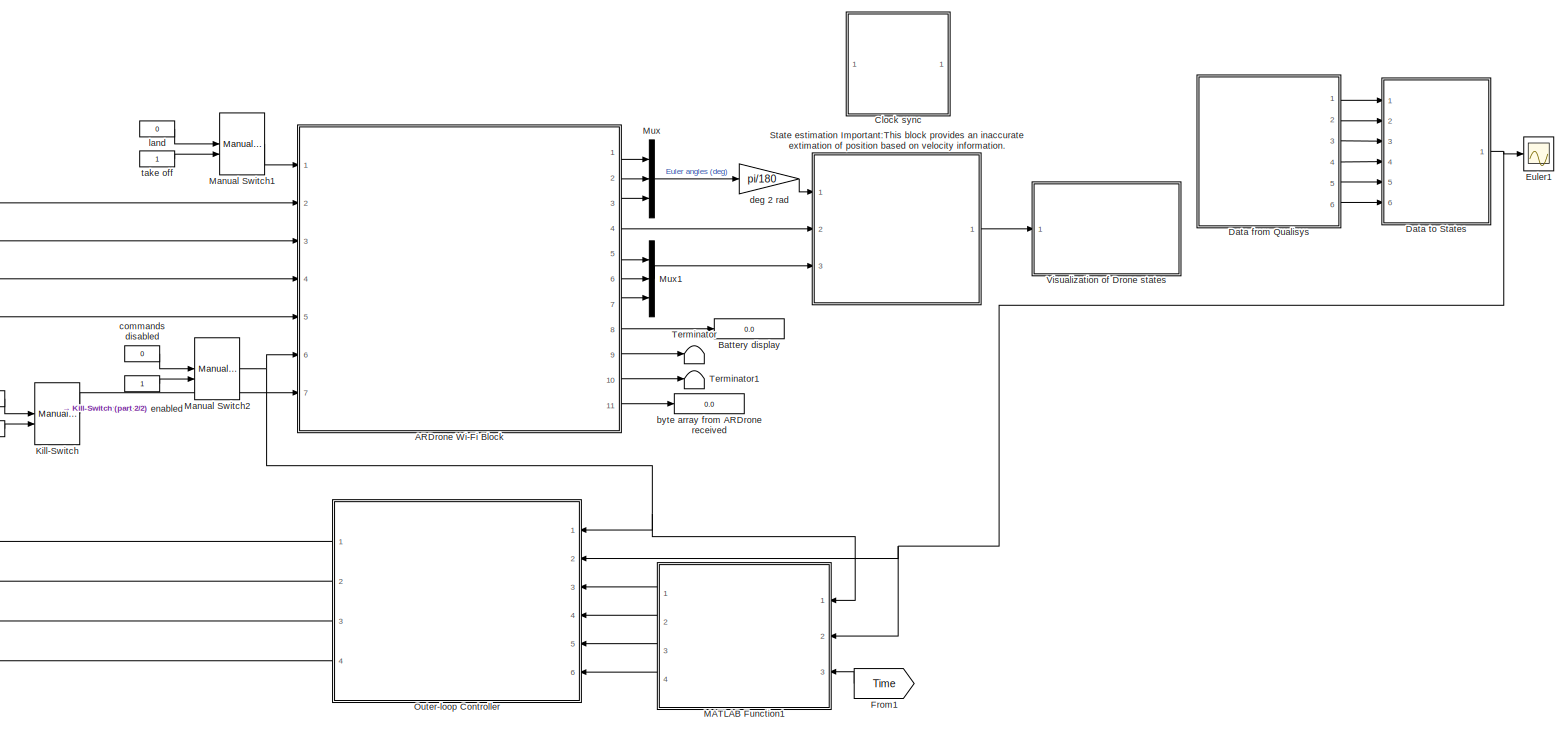
[diagram: root canvas - part 1/2, most of the canvas]
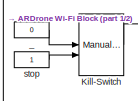
[diagram: root canvas - part 2/2, middle left region]
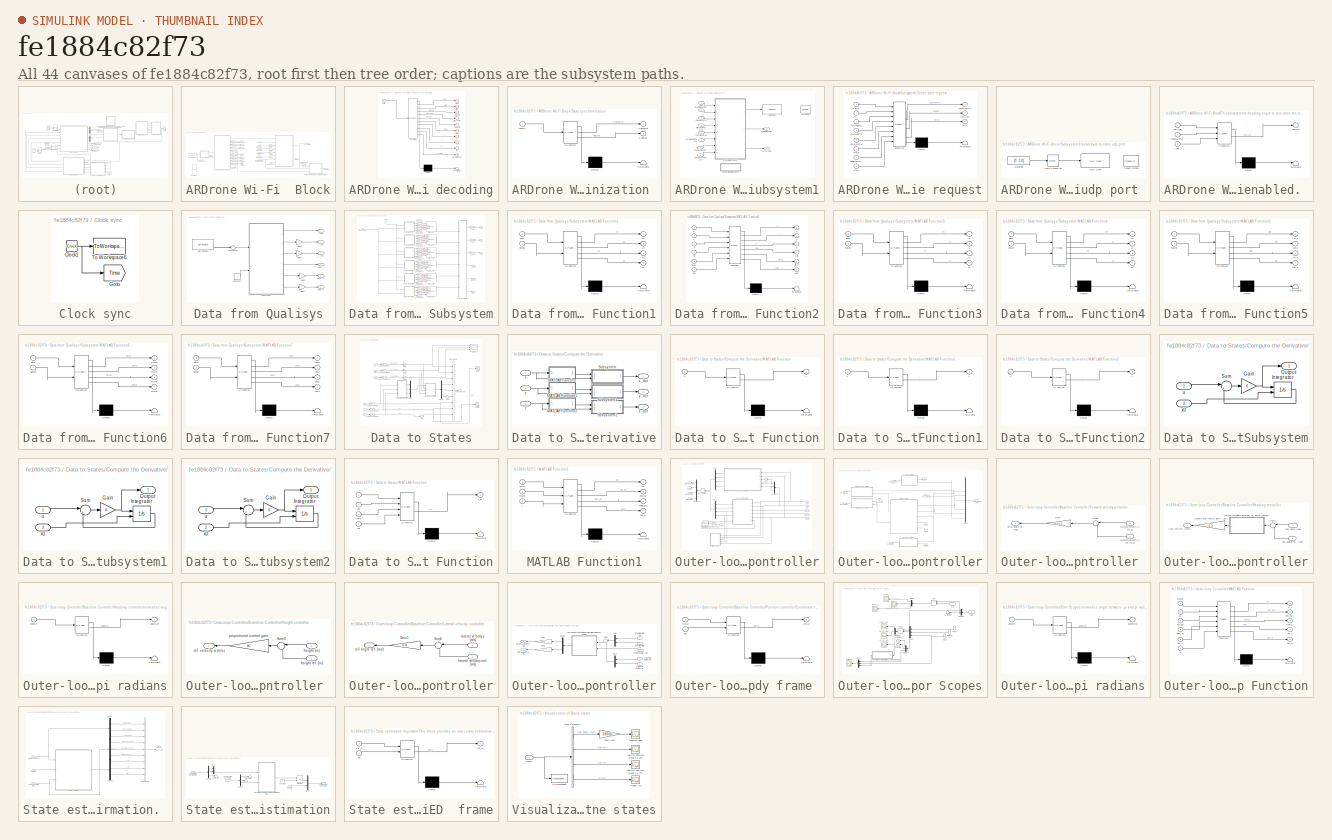
[diagram: thumbnail index - all 44 canvases of the model, root first then tree order]
MODEL slx_fe1884c82f73
KIND model
CONFIG AbsTol = auto
CONFIG EnableMultiTasking = on
CONFIG FixedStep = sampleTime
CONFIG MaxStep = auto
CONFIG MinStep = auto
CONFIG RelTol = 1e-3
CONFIG SampleTimeConstraint = Unconstrained
CONFIG Solver = ode1
CONFIG SolverName = ode1
CONFIG StartTime = 0.0
CONFIG StopTime = inf
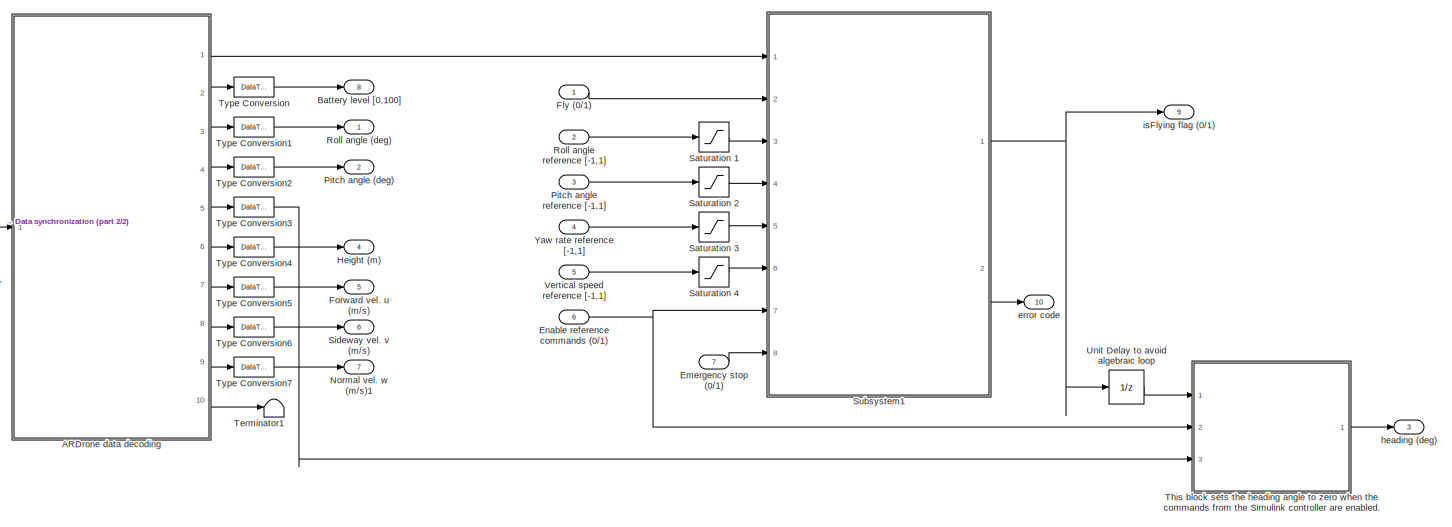
[diagram: ARDrone Wi-Fi  Block - part 1/2, most of the canvas]
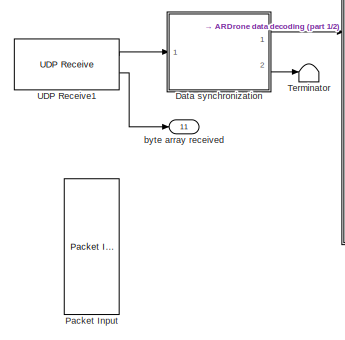
[diagram: ARDrone Wi-Fi  Block - part 2/2, bottom left region]
BLOCK [SubSystem] ARDrone Wi-Fi  Block
  AncestorBlock = ARBlocks/ARDrone Wi-Fi  Block
  Ports = [7, 11]
  RequestExecContextInheritance = off
BLOCK [SubSystem] ARDrone Wi-Fi  Block/ARDrone data decoding
  ErrorFcn = Stateflow.Translate.translate
  PermitHierarchicalResolution = ExplicitOnly
  Ports = [1, 10]
  RequestExecContextInheritance = off
  SFBlockType = MATLAB Function
  TreatAsAtomicUnit = on
BLOCK [Demux] ARDrone Wi-Fi  Block/ARDrone data decoding/ Demux 
  Outputs = 1
  Ports = [1, 1]
BLOCK [S-Function] ARDrone Wi-Fi  Block/ARDrone data decoding/ SFunction 
  EnableBusSupport = on
  FunctionName = sf_sfun
  PortCounts = [1 11]
  Ports = [1, 11]
  SFcnIsStateOwnerBlock = off
  SFunctionDeploymentMode = off
  Tag = Stateflow S-Function ARDroneHover_Final 2
BLOCK [Terminator] ARDrone Wi-Fi  Block/ARDrone data decoding/ Terminator 
BLOCK [Outport] ARDrone Wi-Fi  Block/ARDrone data decoding/battery
  Port = 2
  VectorParamsAs1DForOutWhenUnconnected = off
BLOCK [Outport] ARDrone Wi-Fi  Block/ARDrone data decoding/cksumError
  Port = 10
  VectorParamsAs1DForOutWhenUnconnected = off
BLOCK [Inport] ARDrone Wi-Fi  Block/ARDrone data decoding/data
BLOCK [Outport] ARDrone Wi-Fi  Block/ARDrone data decoding/height
  Port = 6
  VectorParamsAs1DForOutWhenUnconnected = off
BLOCK [Outport] ARDrone Wi-Fi  Block/ARDrone data decoding/pitchAngle
  Port = 4
  VectorParamsAs1DForOutWhenUnconnected = off
BLOCK [Outport] ARDrone Wi-Fi  Block/ARDrone data decoding/rollAngle
  Port = 3
  VectorParamsAs1DForOutWhenUnconnected = off
BLOCK [Outport] ARDrone Wi-Fi  Block/ARDrone data decoding/status
  VectorParamsAs1DForOutWhenUnconnected = off
BLOCK [Outport] ARDrone Wi-Fi  Block/ARDrone data decoding/u
  Port = 7
  VectorParamsAs1DForOutWhenUnconnected = off
BLOCK [Outport] ARDrone Wi-Fi  Block/ARDrone data decoding/v
  Port = 8
  VectorParamsAs1DForOutWhenUnconnected = off
BLOCK [Outport] ARDrone Wi-Fi  Block/ARDrone data decoding/w
  Port = 9
  VectorParamsAs1DForOutWhenUnconnected = off
BLOCK [Outport] ARDrone Wi-Fi  Block/ARDrone data decoding/yawAngle
  Port = 5
  VectorParamsAs1DForOutWhenUnconnected = off
BLOCK [Outport] ARDrone Wi-Fi  Block/Battery level [0,100]
  Port = 8
  VectorParamsAs1DForOutWhenUnconnected = off
BLOCK [SubSystem] ARDrone Wi-Fi  Block/Data synchronization 
  ErrorFcn = Stateflow.Translate.translate
  PermitHierarchicalResolution = ExplicitOnly
  Ports = [1, 2]
  RequestExecContextInheritance = off
  SFBlockType = MATLAB Function
  TreatAsAtomicUnit = on
BLOCK [Demux] ARDrone Wi-Fi  Block/Data synchronization / Demux 
  Outputs = 1
  Ports = [1, 1]
BLOCK [S-Function] ARDrone Wi-Fi  Block/Data synchronization / SFunction 
  EnableBusSupport = on
  FunctionName = sf_sfun
  PortCounts = [1 3]
  Ports = [1, 3]
  SFcnIsStateOwnerBlock = off
  SFunctionDeploymentMode = off
  Tag = Stateflow S-Function ARDroneHover_Final 3
BLOCK [Terminator] ARDrone Wi-Fi  Block/Data synchronization / Terminator 
BLOCK [Inport] ARDrone Wi-Fi  Block/Data synchronization /dataIn
BLOCK [Outport] ARDrone Wi-Fi  Block/Data synchronization /flagOut
  Port = 2
  VectorParamsAs1DForOutWhenUnconnected = off
BLOCK [Outport] ARDrone Wi-Fi  Block/Data synchronization /frameOut
  VectorParamsAs1DForOutWhenUnconnected = off
BLOCK [Inport] ARDrone Wi-Fi  Block/Emergency stop (0//1)
  Port = 7
BLOCK [Inport] ARDrone Wi-Fi  Block/Enable reference commands (0//1)
  Port = 6
BLOCK [Inport] ARDrone Wi-Fi  Block/Fly (0//1)
BLOCK [Outport] ARDrone Wi-Fi  Block/Forward vel. u (m//s)
  Port = 5
  VectorParamsAs1DForOutWhenUnconnected = off
BLOCK [Outport] ARDrone Wi-Fi  Block/Height (m)
  Port = 4
  VectorParamsAs1DForOutWhenUnconnected = off
BLOCK [Outport] ARDrone Wi-Fi  Block/Normal vel. w (m//s)1
  Port = 7
  VectorParamsAs1DForOutWhenUnconnected = off
BLOCK [Reference] ARDrone Wi-Fi  Block/Packet Input  REF=sldrtlib/Packet Input
  AttributesFormatString = UDP Protocol [5554]
  Commented = on
  Ports = [0, 2]
  SourceBlock = sldrtlib/Packet Input
  SourceProductBaseCode = WT
  SourceType = Simulink Desktop Real-Time Packet Input
BLOCK [Outport] ARDrone Wi-Fi  Block/Pitch angle (deg)
  Port = 2
  VectorParamsAs1DForOutWhenUnconnected = off
BLOCK [Inport] ARDrone Wi-Fi  Block/Pitch angle reference [-1,1]
  Port = 3
BLOCK [Outport] ARDrone Wi-Fi  Block/Roll angle (deg)
  VectorParamsAs1DForOutWhenUnconnected = off
BLOCK [Inport] ARDrone Wi-Fi  Block/Roll angle reference [-1,1]
  Port = 2
BLOCK [Saturate] ARDrone Wi-Fi  Block/Saturation 1
  LowerLimit = -1
  UpperLimit = 1
BLOCK [Saturate] ARDrone Wi-Fi  Block/Saturation 2
  LowerLimit = -1
  UpperLimit = 1
BLOCK [Saturate] ARDrone Wi-Fi  Block/Saturation 3
  LowerLimit = -1
  UpperLimit = 1
BLOCK [Saturate] ARDrone Wi-Fi  Block/Saturation 4
  LowerLimit = -1
  UpperLimit = 1
BLOCK [Outport] ARDrone Wi-Fi  Block/Sideway vel. v (m//s)
  Port = 6
  VectorParamsAs1DForOutWhenUnconnected = off
BLOCK [SubSystem] ARDrone Wi-Fi  Block/Subsystem1
  Ports = [8, 2]
  RequestExecContextInheritance = off
BLOCK [SubSystem] ARDrone Wi-Fi  Block/Subsystem1/Drone state request
  ErrorFcn = Stateflow.Translate.translate
  PermitHierarchicalResolution = ExplicitOnly
  Ports = [8, 3]
  RequestExecContextInheritance = off
  SFBlockType = MATLAB Function
  SystemSampleTime = sampleTime
  TreatAsAtomicUnit = on
BLOCK [Demux] ARDrone Wi-Fi  Block/Subsystem1/Drone state request/ Demux 
  Outputs = 1
  Ports = [1, 1]
BLOCK [S-Function] ARDrone Wi-Fi  Block/Subsystem1/Drone state request/ SFunction 
  EnableBusSupport = on
  FunctionName = sf_sfun
  PortCounts = [8 4]
  Ports = [8, 4]
  SFcnIsStateOwnerBlock = off
  SFunctionDeploymentMode = off
  Tag = Stateflow S-Function ARDroneHover_Final 1
BLOCK [Terminator] ARDrone Wi-Fi  Block/Subsystem1/Drone state request/ Terminator 
BLOCK [Outport] ARDrone Wi-Fi  Block/Subsystem1/Drone state request/dataControl
  VectorParamsAs1DForOutWhenUnconnected = off
BLOCK [Inport] ARDrone Wi-Fi  Block/Subsystem1/Drone state request/enableRefs
  Port = 7
BLOCK [Outport] ARDrone Wi-Fi  Block/Subsystem1/Drone state request/error
  Port = 3
  VectorParamsAs1DForOutWhenUnconnected = off
BLOCK [Inport] ARDrone Wi-Fi  Block/Subsystem1/Drone state request/fly
  Port = 2
BLOCK [Outport] ARDrone Wi-Fi  Block/Subsystem1/Drone state request/isFlying
  Port = 2
  VectorParamsAs1DForOutWhenUnconnected = off
BLOCK [Inport] ARDrone Wi-Fi  Block/Subsystem1/Drone state request/pitchAngRef
  Port = 4
BLOCK [Inport] ARDrone Wi-Fi  Block/Subsystem1/Drone state request/rollAngRef
  Port = 3
BLOCK [Inport] ARDrone Wi-Fi  Block/Subsystem1/Drone state request/status
BLOCK [Inport] ARDrone Wi-Fi  Block/Subsystem1/Drone state request/stop
  Port = 8
BLOCK [Inport] ARDrone Wi-Fi  Block/Subsystem1/Drone state request/wRef
  Port = 6
BLOCK [Inport] ARDrone Wi-Fi  Block/Subsystem1/Drone state request/yawRateRef
  Port = 5
BLOCK [Reference] ARDrone Wi-Fi  Block/Subsystem1/Packet Output  REF=sldrtlib/Packet Output
  AttributesFormatString = UDP Protocol [5556]
  Commented = on
  Ports = [1]
  SourceBlock = sldrtlib/Packet Output
  SourceProductBaseCode = WT
  SourceType = Simulink Desktop Real-Time Packet Output
BLOCK [Reference] ARDrone Wi-Fi  Block/Subsystem1/UDP Send  REF=dspnetwork/UDP Send
  Ports = [1]
  SourceBlock = dspnetwork/UDP Send
  SourceProductBaseCode = SL
  SourceType = UDP Send
BLOCK [Inport] ARDrone Wi-Fi  Block/Subsystem1/emergency stop (0//1)
  Port = 8
BLOCK [Inport] ARDrone Wi-Fi  Block/Subsystem1/enable refs (0//1)
  Port = 7
BLOCK [Outport] ARDrone Wi-Fi  Block/Subsystem1/error code
  Port = 2
  VectorParamsAs1DForOutWhenUnconnected = off
BLOCK [Inport] ARDrone Wi-Fi  Block/Subsystem1/fly command (0//1)
  Port = 2
BLOCK [Outport] ARDrone Wi-Fi  Block/Subsystem1/isFlying flag (0//1)
  VectorParamsAs1DForOutWhenUnconnected = off
BLOCK [Inport] ARDrone Wi-Fi  Block/Subsystem1/normal velocity w [-1,1]
  Port = 6
BLOCK [Inport] ARDrone Wi-Fi  Block/Subsystem1/pitch angle ref. [-1,1]
  Port = 4
BLOCK [Inport] ARDrone Wi-Fi  Block/Subsystem1/roll angle ref [-1,1]
  Port = 3
BLOCK [SubSystem] ARDrone Wi-Fi  Block/Subsystem1/send byte to state udp port 
  Ports = []
  RequestExecContextInheritance = off
BLOCK [Constant] ARDrone Wi-Fi  Block/Subsystem1/send byte to state udp port /Constant
  OutDataTypeStr = uint8
  Value = [1 ;13]
BLOCK [Reference] ARDrone Wi-Fi  Block/Subsystem1/send byte to state udp port /Packet Output  REF=sldrtlib/Packet Output
  AttributesFormatString = UDP Protocol [5554]
  Commented = on
  Ports = [1]
  SourceBlock = sldrtlib/Packet Output
  SourceProductBaseCode = WT
  SourceType = Simulink Desktop Real-Time Packet Output
BLOCK [RateTransition] ARDrone Wi-Fi  Block/Subsystem1/send byte to state udp port /Rate Transition
BLOCK [Reference] ARDrone Wi-Fi  Block/Subsystem1/send byte to state udp port /UDP Send  REF=dspnetwork/UDP Send
  Ports = [1]
  SourceBlock = dspnetwork/UDP Send
  SourceProductBaseCode = SL
  SourceType = UDP Send
BLOCK [Inport] ARDrone Wi-Fi  Block/Subsystem1/status
BLOCK [Inport] ARDrone Wi-Fi  Block/Subsystem1/yaw rate ref. [-1,1]
  Port = 5
BLOCK [Terminator] ARDrone Wi-Fi  Block/Terminator
BLOCK [Terminator] ARDrone Wi-Fi  Block/Terminator1
BLOCK [SubSystem] ARDrone Wi-Fi  Block/This block sets the heading angle to zero when the commands from the Simulink controller are enabled. 
  ErrorFcn = Stateflow.Translate.translate
  PermitHierarchicalResolution = ExplicitOnly
  Ports = [3, 1]
  RequestExecContextInheritance = off
  SFBlockType = MATLAB Function
  TreatAsAtomicUnit = on
BLOCK [Demux] ARDrone Wi-Fi  Block/This block sets the heading angle to zero when the commands from the Simulink controller are enabled. / Demux 
  Outputs = 1
  Ports = [1, 1]
BLOCK [S-Function] ARDrone Wi-Fi  Block/This block sets the heading angle to zero when the commands from the Simulink controller are enabled. / SFunction 
  EnableBusSupport = on
  FunctionName = sf_sfun
  PortCounts = [3 2]
  Ports = [3, 2]
  SFcnIsStateOwnerBlock = off
  SFunctionDeploymentMode = off
  Tag = Stateflow S-Function ARDroneHover_Final 4
BLOCK [Terminator] ARDrone Wi-Fi  Block/This block sets the heading angle to zero when the commands from the Simulink controller are enabled. / Terminator 
BLOCK [Inport] ARDrone Wi-Fi  Block/This block sets the heading angle to zero when the commands from the Simulink controller are enabled. /enableCmds
  Port = 2
BLOCK [Inport] ARDrone Wi-Fi  Block/This block sets the heading angle to zero when the commands from the Simulink controller are enabled. /isFlying
BLOCK [Inport] ARDrone Wi-Fi  Block/This block sets the heading angle to zero when the commands from the Simulink controller are enabled. /yaw
  Port = 3
BLOCK [Outport] ARDrone Wi-Fi  Block/This block sets the heading angle to zero when the commands from the Simulink controller are enabled. /yawOut
  VectorParamsAs1DForOutWhenUnconnected = off
BLOCK [DataTypeConversion] ARDrone Wi-Fi  Block/Type Conversion
  OutDataTypeStr = double
  RndMeth = Floor
  SaturateOnIntegerOverflow = off
BLOCK [DataTypeConversion] ARDrone Wi-Fi  Block/Type Conversion1
  OutDataTypeStr = double
  RndMeth = Floor
  SaturateOnIntegerOverflow = off
BLOCK [DataTypeConversion] ARDrone Wi-Fi  Block/Type Conversion2
  OutDataTypeStr = double
  RndMeth = Floor
  SaturateOnIntegerOverflow = off
BLOCK [DataTypeConversion] ARDrone Wi-Fi  Block/Type Conversion3
  OutDataTypeStr = double
  RndMeth = Floor
  SaturateOnIntegerOverflow = off
BLOCK [DataTypeConversion] ARDrone Wi-Fi  Block/Type Conversion4
  OutDataTypeStr = double
  RndMeth = Floor
  SaturateOnIntegerOverflow = off
BLOCK [DataTypeConversion] ARDrone Wi-Fi  Block/Type Conversion5
  OutDataTypeStr = double
  RndMeth = Floor
  SaturateOnIntegerOverflow = off
BLOCK [DataTypeConversion] ARDrone Wi-Fi  Block/Type Conversion6
  OutDataTypeStr = double
  RndMeth = Floor
  SaturateOnIntegerOverflow = off
BLOCK [DataTypeConversion] ARDrone Wi-Fi  Block/Type Conversion7
  OutDataTypeStr = double
  RndMeth = Floor
  SaturateOnIntegerOverflow = off
BLOCK [Reference] ARDrone Wi-Fi  Block/UDP Receive1  REF=dspnetwork/UDP Receive
  Ports = [0, 2]
  SourceBlock = dspnetwork/UDP Receive
  SourceProductBaseCode = SL
  SourceType = UDP Receive
BLOCK [UnitDelay] ARDrone Wi-Fi  Block/Unit Delay to avoid algebraic loop
  HasFrameUpgradeWarning = on
  SampleTime = -1
BLOCK [Inport] ARDrone Wi-Fi  Block/Vertical speed reference [-1,1]
  Port = 5
BLOCK [Inport] ARDrone Wi-Fi  Block/Yaw rate reference [-1,1]
  Port = 4
BLOCK [Outport] ARDrone Wi-Fi  Block/byte array received
  Port = 11
  VectorParamsAs1DForOutWhenUnconnected = off
BLOCK [Outport] ARDrone Wi-Fi  Block/error code
  Port = 10
  VectorParamsAs1DForOutWhenUnconnected = off
BLOCK [Outport] ARDrone Wi-Fi  Block/heading  (deg)
  Port = 3
  VectorParamsAs1DForOutWhenUnconnected = off
BLOCK [Outport] ARDrone Wi-Fi  Block/isFlying flag (0//1)
  Port = 9
  VectorParamsAs1DForOutWhenUnconnected = off
BLOCK [Display] Battery display
  Decimation = 1
  Ports = [1]
BLOCK [SubSystem] Clock sync
  Ports = []
  RequestExecContextInheritance = off
BLOCK [Clock] Clock sync/Clock1
BLOCK [Goto] Clock sync/Goto
  GotoTag = Time
  TagVisibility = global
BLOCK [ToWorkspace] Clock sync/To Workspace6
  MaxDataPoints = inf
  Ports = [1]
  SampleTime = sampleTime
  VariableName = timeRT
BLOCK [SubSystem] Data from Qualisys
  Ports = [0, 6]
  RequestExecContextInheritance = off
BLOCK [Constant] Data from Qualisys/Constant1
BLOCK [Gain] Data from Qualisys/Gain10
  Gain = -1
BLOCK [Gain] Data from Qualisys/Gain6
  Gain = -1
BLOCK [Gain] Data from Qualisys/Gain7
  Gain = -1
BLOCK [Gain] Data from Qualisys/Gain9
  Gain = -1
BLOCK [Outport] Data from Qualisys/Pitch (º)
  Port = 5
BLOCK [Outport] Data from Qualisys/Roll (º)
  Port = 4
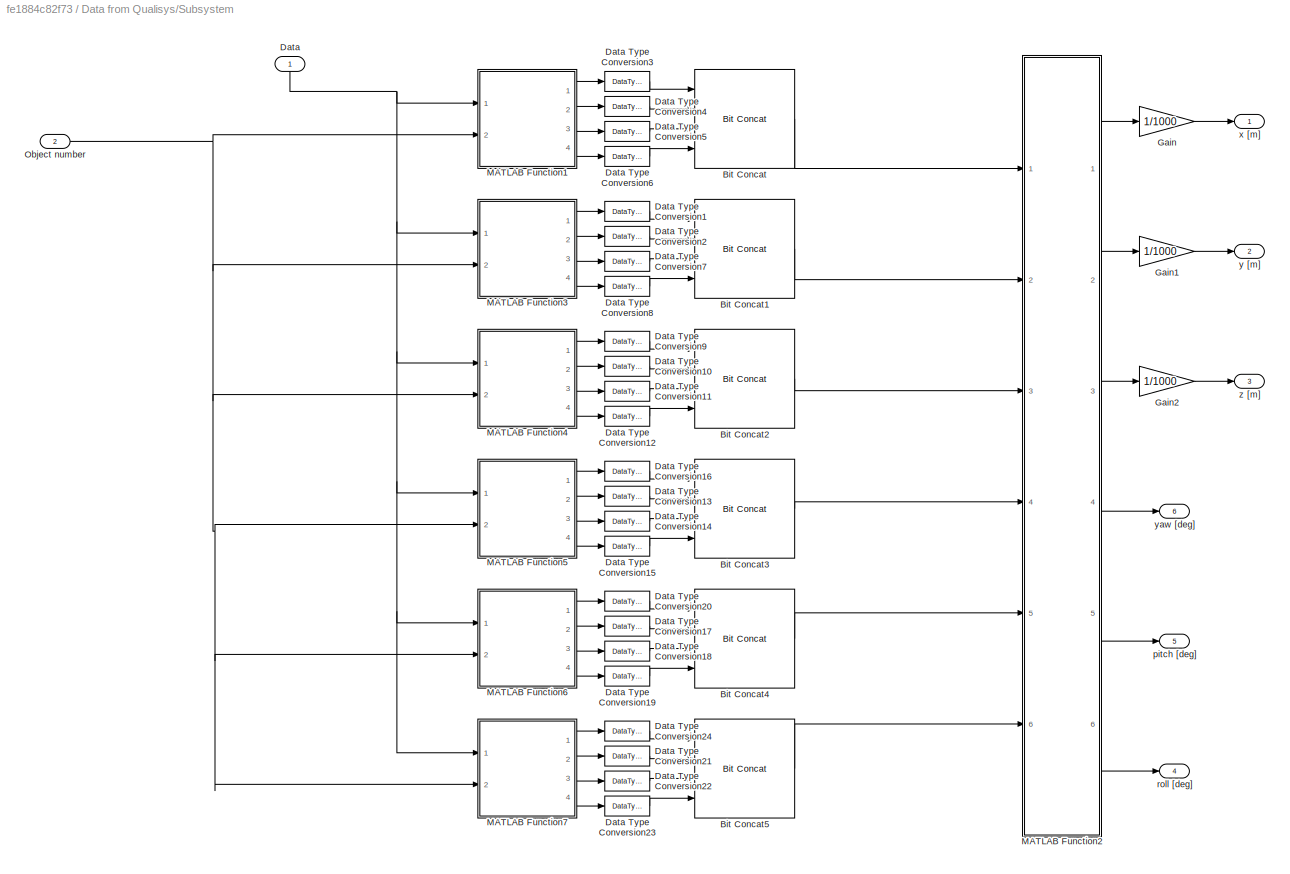
BLOCK [SubSystem] Data from Qualisys/Subsystem
  Ports = [2, 6]
  RequestExecContextInheritance = off
BLOCK [Reference] Data from Qualisys/Subsystem/Bit Concat  REF=hdlsllib/Logic and Bit
Operations/Bit Concat
  Ports = [4, 1]
  SourceBlock = hdlsllib/Logic and Bit\nOperations/Bit Concat
  SourceProductBaseCode = SL
  SourceType = Bit Concat
BLOCK [Reference] Data from Qualisys/Subsystem/Bit Concat1  REF=hdlsllib/Logic and Bit
Operations/Bit Concat
  Ports = [4, 1]
  SourceBlock = hdlsllib/Logic and Bit\nOperations/Bit Concat
  SourceProductBaseCode = SL
  SourceType = Bit Concat
BLOCK [Reference] Data from Qualisys/Subsystem/Bit Concat2  REF=hdlsllib/Logic and Bit
Operations/Bit Concat
  Ports = [4, 1]
  SourceBlock = hdlsllib/Logic and Bit\nOperations/Bit Concat
  SourceProductBaseCode = SL
  SourceType = Bit Concat
BLOCK [Reference] Data from Qualisys/Subsystem/Bit Concat3  REF=hdlsllib/Logic and Bit
Operations/Bit Concat
  Ports = [4, 1]
  SourceBlock = hdlsllib/Logic and Bit\nOperations/Bit Concat
  SourceProductBaseCode = SL
  SourceType = Bit Concat
BLOCK [Reference] Data from Qualisys/Subsystem/Bit Concat4  REF=hdlsllib/Logic and Bit
Operations/Bit Concat
  Ports = [4, 1]
  SourceBlock = hdlsllib/Logic and Bit\nOperations/Bit Concat
  SourceProductBaseCode = SL
  SourceType = Bit Concat
BLOCK [Reference] Data from Qualisys/Subsystem/Bit Concat5  REF=hdlsllib/Logic and Bit
Operations/Bit Concat
  Ports = [4, 1]
  SourceBlock = hdlsllib/Logic and Bit\nOperations/Bit Concat
  SourceProductBaseCode = SL
  SourceType = Bit Concat
BLOCK [Inport] Data from Qualisys/Subsystem/Data
BLOCK [DataTypeConversion] Data from Qualisys/Subsystem/Data Type Conversion1
  OutDataTypeStr = uint8
  RndMeth = Floor
  SaturateOnIntegerOverflow = off
BLOCK [DataTypeConversion] Data from Qualisys/Subsystem/Data Type Conversion10
  OutDataTypeStr = uint8
  RndMeth = Floor
  SaturateOnIntegerOverflow = off
BLOCK [DataTypeConversion] Data from Qualisys/Subsystem/Data Type Conversion11
  OutDataTypeStr = uint8
  RndMeth = Floor
  SaturateOnIntegerOverflow = off
BLOCK [DataTypeConversion] Data from Qualisys/Subsystem/Data Type Conversion12
  OutDataTypeStr = uint8
  RndMeth = Floor
  SaturateOnIntegerOverflow = off
BLOCK [DataTypeConversion] Data from Qualisys/Subsystem/Data Type Conversion13
  OutDataTypeStr = uint8
  RndMeth = Floor
  SaturateOnIntegerOverflow = off
BLOCK [DataTypeConversion] Data from Qualisys/Subsystem/Data Type Conversion14
  OutDataTypeStr = uint8
  RndMeth = Floor
  SaturateOnIntegerOverflow = off
BLOCK [DataTypeConversion] Data from Qualisys/Subsystem/Data Type Conversion15
  OutDataTypeStr = uint8
  RndMeth = Floor
  SaturateOnIntegerOverflow = off
BLOCK [DataTypeConversion] Data from Qualisys/Subsystem/Data Type Conversion16
  OutDataTypeStr = uint8
  RndMeth = Floor
  SaturateOnIntegerOverflow = off
BLOCK [DataTypeConversion] Data from Qualisys/Subsystem/Data Type Conversion17
  OutDataTypeStr = uint8
  RndMeth = Floor
  SaturateOnIntegerOverflow = off
BLOCK [DataTypeConversion] Data from Qualisys/Subsystem/Data Type Conversion18
  OutDataTypeStr = uint8
  RndMeth = Floor
  SaturateOnIntegerOverflow = off
BLOCK [DataTypeConversion] Data from Qualisys/Subsystem/Data Type Conversion19
  OutDataTypeStr = uint8
  RndMeth = Floor
  SaturateOnIntegerOverflow = off
BLOCK [DataTypeConversion] Data from Qualisys/Subsystem/Data Type Conversion2
  OutDataTypeStr = uint8
  RndMeth = Floor
  SaturateOnIntegerOverflow = off
BLOCK [DataTypeConversion] Data from Qualisys/Subsystem/Data Type Conversion20
  OutDataTypeStr = uint8
  RndMeth = Floor
  SaturateOnIntegerOverflow = off
BLOCK [DataTypeConversion] Data from Qualisys/Subsystem/Data Type Conversion21
  OutDataTypeStr = uint8
  RndMeth = Floor
  SaturateOnIntegerOverflow = off
BLOCK [DataTypeConversion] Data from Qualisys/Subsystem/Data Type Conversion22
  OutDataTypeStr = uint8
  RndMeth = Floor
  SaturateOnIntegerOverflow = off
BLOCK [DataTypeConversion] Data from Qualisys/Subsystem/Data Type Conversion23
  OutDataTypeStr = uint8
  RndMeth = Floor
  SaturateOnIntegerOverflow = off
BLOCK [DataTypeConversion] Data from Qualisys/Subsystem/Data Type Conversion24
  OutDataTypeStr = uint8
  RndMeth = Floor
  SaturateOnIntegerOverflow = off
BLOCK [DataTypeConversion] Data from Qualisys/Subsystem/Data Type Conversion3
  OutDataTypeStr = uint8
  RndMeth = Floor
  SaturateOnIntegerOverflow = off
BLOCK [DataTypeConversion] Data from Qualisys/Subsystem/Data Type Conversion4
  OutDataTypeStr = uint8
  RndMeth = Floor
  SaturateOnIntegerOverflow = off
BLOCK [DataTypeConversion] Data from Qualisys/Subsystem/Data Type Conversion5
  OutDataTypeStr = uint8
  RndMeth = Floor
  SaturateOnIntegerOverflow = off
BLOCK [DataTypeConversion] Data from Qualisys/Subsystem/Data Type Conversion6
  OutDataTypeStr = uint8
  RndMeth = Floor
  SaturateOnIntegerOverflow = off
BLOCK [DataTypeConversion] Data from Qualisys/Subsystem/Data Type Conversion7
  OutDataTypeStr = uint8
  RndMeth = Floor
  SaturateOnIntegerOverflow = off
BLOCK [DataTypeConversion] Data from Qualisys/Subsystem/Data Type Conversion8
  OutDataTypeStr = uint8
  RndMeth = Floor
  SaturateOnIntegerOverflow = off
BLOCK [DataTypeConversion] Data from Qualisys/Subsystem/Data Type Conversion9
  OutDataTypeStr = uint8
  RndMeth = Floor
  SaturateOnIntegerOverflow = off
BLOCK [Gain] Data from Qualisys/Subsystem/Gain
  Gain = 1/1000
BLOCK [Gain] Data from Qualisys/Subsystem/Gain1
  Gain = 1/1000
BLOCK [Gain] Data from Qualisys/Subsystem/Gain2
  Gain = 1/1000
BLOCK [SubSystem] Data from Qualisys/Subsystem/MATLAB Function1
  ErrorFcn = Stateflow.Translate.translate
  PermitHierarchicalResolution = ExplicitOnly
  Ports = [2, 4]
  RequestExecContextInheritance = off
  SFBlockType = MATLAB Function
  TreatAsAtomicUnit = on
BLOCK [Demux] Data from Qualisys/Subsystem/MATLAB Function1/ Demux 
  Outputs = 1
  Ports = [1, 1]
BLOCK [S-Function] Data from Qualisys/Subsystem/MATLAB Function1/ SFunction 
  EnableBusSupport = on
  FunctionName = sf_sfun
  PortCounts = [2 5]
  Ports = [2, 5]
  SFcnIsStateOwnerBlock = off
  SFunctionDeploymentMode = off
  Tag = Stateflow S-Function ARDroneHover_Final 14
BLOCK [Terminator] Data from Qualisys/Subsystem/MATLAB Function1/ Terminator 
BLOCK [Inport] Data from Qualisys/Subsystem/MATLAB Function1/data
BLOCK [Inport] Data from Qualisys/Subsystem/MATLAB Function1/object
  Port = 2
BLOCK [Outport] Data from Qualisys/Subsystem/MATLAB Function1/x1
  Port = 4
  VectorParamsAs1DForOutWhenUnconnected = off
BLOCK [Outport] Data from Qualisys/Subsystem/MATLAB Function1/x2
  Port = 3
  VectorParamsAs1DForOutWhenUnconnected = off
BLOCK [Outport] Data from Qualisys/Subsystem/MATLAB Function1/x3
  Port = 2
  VectorParamsAs1DForOutWhenUnconnected = off
BLOCK [Outport] Data from Qualisys/Subsystem/MATLAB Function1/x4
  VectorParamsAs1DForOutWhenUnconnected = off
BLOCK [SubSystem] Data from Qualisys/Subsystem/MATLAB Function2
  ErrorFcn = Stateflow.Translate.translate
  PermitHierarchicalResolution = ExplicitOnly
  Ports = [6, 6]
  RequestExecContextInheritance = off
  SFBlockType = MATLAB Function
  TreatAsAtomicUnit = on
BLOCK [Demux] Data from Qualisys/Subsystem/MATLAB Function2/ Demux 
  Outputs = 1
  Ports = [1, 1]
BLOCK [S-Function] Data from Qualisys/Subsystem/MATLAB Function2/ SFunction 
  EnableBusSupport = on
  FunctionName = sf_sfun
  PortCounts = [6 7]
  Ports = [6, 7]
  SFcnIsStateOwnerBlock = off
  SFunctionDeploymentMode = off
  Tag = Stateflow S-Function ARDroneHover_Final 15
BLOCK [Terminator] Data from Qualisys/Subsystem/MATLAB Function2/ Terminator 
BLOCK [Outport] Data from Qualisys/Subsystem/MATLAB Function2/Pitch
  Port = 5
  VectorParamsAs1DForOutWhenUnconnected = off
BLOCK [Outport] Data from Qualisys/Subsystem/MATLAB Function2/Roll
  Port = 4
  VectorParamsAs1DForOutWhenUnconnected = off
BLOCK [Outport] Data from Qualisys/Subsystem/MATLAB Function2/X
  VectorParamsAs1DForOutWhenUnconnected = off
BLOCK [Outport] Data from Qualisys/Subsystem/MATLAB Function2/Y
  Port = 2
  VectorParamsAs1DForOutWhenUnconnected = off
BLOCK [Outport] Data from Qualisys/Subsystem/MATLAB Function2/Yaw
  Port = 6
  VectorParamsAs1DForOutWhenUnconnected = off
BLOCK [Outport] Data from Qualisys/Subsystem/MATLAB Function2/Z
  Port = 3
  VectorParamsAs1DForOutWhenUnconnected = off
BLOCK [Inport] Data from Qualisys/Subsystem/MATLAB Function2/pitch
  Port = 5
BLOCK [Inport] Data from Qualisys/Subsystem/MATLAB Function2/roll
  Port = 4
BLOCK [Inport] Data from Qualisys/Subsystem/MATLAB Function2/x
BLOCK [Inport] Data from Qualisys/Subsystem/MATLAB Function2/y
  Port = 2
BLOCK [Inport] Data from Qualisys/Subsystem/MATLAB Function2/yaw
  Port = 6
BLOCK [Inport] Data from Qualisys/Subsystem/MATLAB Function2/z
  Port = 3
BLOCK [SubSystem] Data from Qualisys/Subsystem/MATLAB Function3
  ErrorFcn = Stateflow.Translate.translate
  PermitHierarchicalResolution = ExplicitOnly
  Ports = [2, 4]
  RequestExecContextInheritance = off
  SFBlockType = MATLAB Function
  TreatAsAtomicUnit = on
BLOCK [Demux] Data from Qualisys/Subsystem/MATLAB Function3/ Demux 
  Outputs = 1
  Ports = [1, 1]
BLOCK [S-Function] Data from Qualisys/Subsystem/MATLAB Function3/ SFunction 
  EnableBusSupport = on
  FunctionName = sf_sfun
  PortCounts = [2 5]
  Ports = [2, 5]
  SFcnIsStateOwnerBlock = off
  SFunctionDeploymentMode = off
  Tag = Stateflow S-Function ARDroneHover_Final 16
BLOCK [Terminator] Data from Qualisys/Subsystem/MATLAB Function3/ Terminator 
BLOCK [Inport] Data from Qualisys/Subsystem/MATLAB Function3/data
BLOCK [Inport] Data from Qualisys/Subsystem/MATLAB Function3/object
  Port = 2
BLOCK [Outport] Data from Qualisys/Subsystem/MATLAB Function3/y1
  Port = 4
  VectorParamsAs1DForOutWhenUnconnected = off
BLOCK [Outport] Data from Qualisys/Subsystem/MATLAB Function3/y2
  Port = 3
  VectorParamsAs1DForOutWhenUnconnected = off
BLOCK [Outport] Data from Qualisys/Subsystem/MATLAB Function3/y3
  Port = 2
  VectorParamsAs1DForOutWhenUnconnected = off
BLOCK [Outport] Data from Qualisys/Subsystem/MATLAB Function3/y4
  VectorParamsAs1DForOutWhenUnconnected = off
BLOCK [SubSystem] Data from Qualisys/Subsystem/MATLAB Function4
  ErrorFcn = Stateflow.Translate.translate
  PermitHierarchicalResolution = ExplicitOnly
  Ports = [2, 4]
  RequestExecContextInheritance = off
  SFBlockType = MATLAB Function
  TreatAsAtomicUnit = on
BLOCK [Demux] Data from Qualisys/Subsystem/MATLAB Function4/ Demux 
  Outputs = 1
  Ports = [1, 1]
BLOCK [S-Function] Data from Qualisys/Subsystem/MATLAB Function4/ SFunction 
  EnableBusSupport = on
  FunctionName = sf_sfun
  PortCounts = [2 5]
  Ports = [2, 5]
  SFcnIsStateOwnerBlock = off
  SFunctionDeploymentMode = off
  Tag = Stateflow S-Function ARDroneHover_Final 17
BLOCK [Terminator] Data from Qualisys/Subsystem/MATLAB Function4/ Terminator 
BLOCK [Inport] Data from Qualisys/Subsystem/MATLAB Function4/data
BLOCK [Inport] Data from Qualisys/Subsystem/MATLAB Function4/object
  Port = 2
BLOCK [Outport] Data from Qualisys/Subsystem/MATLAB Function4/z1
  Port = 4
  VectorParamsAs1DForOutWhenUnconnected = off
BLOCK [Outport] Data from Qualisys/Subsystem/MATLAB Function4/z2
  Port = 3
  VectorParamsAs1DForOutWhenUnconnected = off
BLOCK [Outport] Data from Qualisys/Subsystem/MATLAB Function4/z3
  Port = 2
  VectorParamsAs1DForOutWhenUnconnected = off
BLOCK [Outport] Data from Qualisys/Subsystem/MATLAB Function4/z4
  VectorParamsAs1DForOutWhenUnconnected = off
BLOCK [SubSystem] Data from Qualisys/Subsystem/MATLAB Function5
  ErrorFcn = Stateflow.Translate.translate
  PermitHierarchicalResolution = ExplicitOnly
  Ports = [2, 4]
  RequestExecContextInheritance = off
  SFBlockType = MATLAB Function
  TreatAsAtomicUnit = on
BLOCK [Demux] Data from Qualisys/Subsystem/MATLAB Function5/ Demux 
  Outputs = 1
  Ports = [1, 1]
BLOCK [S-Function] Data from Qualisys/Subsystem/MATLAB Function5/ SFunction 
  EnableBusSupport = on
  FunctionName = sf_sfun
  PortCounts = [2 5]
  Ports = [2, 5]
  SFcnIsStateOwnerBlock = off
  SFunctionDeploymentMode = off
  Tag = Stateflow S-Function ARDroneHover_Final 18
BLOCK [Terminator] Data from Qualisys/Subsystem/MATLAB Function5/ Terminator 
BLOCK [Inport] Data from Qualisys/Subsystem/MATLAB Function5/data
BLOCK [Inport] Data from Qualisys/Subsystem/MATLAB Function5/object
  Port = 2
BLOCK [Outport] Data from Qualisys/Subsystem/MATLAB Function5/roll1
  Port = 4
  VectorParamsAs1DForOutWhenUnconnected = off
BLOCK [Outport] Data from Qualisys/Subsystem/MATLAB Function5/roll2
  Port = 3
  VectorParamsAs1DForOutWhenUnconnected = off
BLOCK [Outport] Data from Qualisys/Subsystem/MATLAB Function5/roll3
  Port = 2
  VectorParamsAs1DForOutWhenUnconnected = off
BLOCK [Outport] Data from Qualisys/Subsystem/MATLAB Function5/roll4
  VectorParamsAs1DForOutWhenUnconnected = off
BLOCK [SubSystem] Data from Qualisys/Subsystem/MATLAB Function6
  ErrorFcn = Stateflow.Translate.translate
  PermitHierarchicalResolution = ExplicitOnly
  Ports = [2, 4]
  RequestExecContextInheritance = off
  SFBlockType = MATLAB Function
  TreatAsAtomicUnit = on
BLOCK [Demux] Data from Qualisys/Subsystem/MATLAB Function6/ Demux 
  Outputs = 1
  Ports = [1, 1]
BLOCK [S-Function] Data from Qualisys/Subsystem/MATLAB Function6/ SFunction 
  EnableBusSupport = on
  FunctionName = sf_sfun
  PortCounts = [2 5]
  Ports = [2, 5]
  SFcnIsStateOwnerBlock = off
  SFunctionDeploymentMode = off
  Tag = Stateflow S-Function ARDroneHover_Final 19
BLOCK [Terminator] Data from Qualisys/Subsystem/MATLAB Function6/ Terminator 
BLOCK [Inport] Data from Qualisys/Subsystem/MATLAB Function6/data
BLOCK [Inport] Data from Qualisys/Subsystem/MATLAB Function6/object
  Port = 2
BLOCK [Outport] Data from Qualisys/Subsystem/MATLAB Function6/pitch1
  Port = 4
  VectorParamsAs1DForOutWhenUnconnected = off
BLOCK [Outport] Data from Qualisys/Subsystem/MATLAB Function6/pitch2
  Port = 3
  VectorParamsAs1DForOutWhenUnconnected = off
BLOCK [Outport] Data from Qualisys/Subsystem/MATLAB Function6/pitch3
  Port = 2
  VectorParamsAs1DForOutWhenUnconnected = off
BLOCK [Outport] Data from Qualisys/Subsystem/MATLAB Function6/pitch4
  VectorParamsAs1DForOutWhenUnconnected = off
BLOCK [SubSystem] Data from Qualisys/Subsystem/MATLAB Function7
  ErrorFcn = Stateflow.Translate.translate
  PermitHierarchicalResolution = ExplicitOnly
  Ports = [2, 4]
  RequestExecContextInheritance = off
  SFBlockType = MATLAB Function
  TreatAsAtomicUnit = on
BLOCK [Demux] Data from Qualisys/Subsystem/MATLAB Function7/ Demux 
  Outputs = 1
  Ports = [1, 1]
BLOCK [S-Function] Data from Qualisys/Subsystem/MATLAB Function7/ SFunction 
  EnableBusSupport = on
  FunctionName = sf_sfun
  PortCounts = [2 5]
  Ports = [2, 5]
  SFcnIsStateOwnerBlock = off
  SFunctionDeploymentMode = off
  Tag = Stateflow S-Function ARDroneHover_Final 20
BLOCK [Terminator] Data from Qualisys/Subsystem/MATLAB Function7/ Terminator 
BLOCK [Inport] Data from Qualisys/Subsystem/MATLAB Function7/data
BLOCK [Inport] Data from Qualisys/Subsystem/MATLAB Function7/object
  Port = 2
BLOCK [Outport] Data from Qualisys/Subsystem/MATLAB Function7/yaw1
  Port = 4
  VectorParamsAs1DForOutWhenUnconnected = off
BLOCK [Outport] Data from Qualisys/Subsystem/MATLAB Function7/yaw2
  Port = 3
  VectorParamsAs1DForOutWhenUnconnected = off
BLOCK [Outport] Data from Qualisys/Subsystem/MATLAB Function7/yaw3
  Port = 2
  VectorParamsAs1DForOutWhenUnconnected = off
BLOCK [Outport] Data from Qualisys/Subsystem/MATLAB Function7/yaw4
  VectorParamsAs1DForOutWhenUnconnected = off
BLOCK [Inport] Data from Qualisys/Subsystem/Object number
  Port = 2
BLOCK [Outport] Data from Qualisys/Subsystem/pitch [deg]
  Port = 5
  VectorParamsAs1DForOutWhenUnconnected = off
BLOCK [Outport] Data from Qualisys/Subsystem/roll [deg]
  Port = 4
  VectorParamsAs1DForOutWhenUnconnected = off
BLOCK [Outport] Data from Qualisys/Subsystem/x [m]
  VectorParamsAs1DForOutWhenUnconnected = off
BLOCK [Outport] Data from Qualisys/Subsystem/y [m]
  Port = 2
  VectorParamsAs1DForOutWhenUnconnected = off
BLOCK [Outport] Data from Qualisys/Subsystem/yaw [deg]
  Port = 6
  VectorParamsAs1DForOutWhenUnconnected = off
BLOCK [Outport] Data from Qualisys/Subsystem/z [m]
  Port = 3
  VectorParamsAs1DForOutWhenUnconnected = off
BLOCK [Terminator] Data from Qualisys/Terminator
BLOCK [Reference] Data from Qualisys/UDP Receive  REF=dspnetwork/UDP Receive
  Ports = [0, 2]
  SourceBlock = dspnetwork/UDP Receive
  SourceProductBaseCode = SL
  SourceType = UDP Receive
BLOCK [Outport] Data from Qualisys/Yaw (º)
  Port = 6
BLOCK [Outport] Data from Qualisys/x [m]
BLOCK [Outport] Data from Qualisys/y [m]
  Port = 2
BLOCK [Outport] Data from Qualisys/z [m]
  Port = 3
BLOCK [SubSystem] Data to States
  Ports = [6, 1]
  RequestExecContextInheritance = off
BLOCK [BusCreator] Data to States/Bus Creator1
  DisplayOption = bar
  InheritFromInputs = on
  Inputs = 9
  Ports = [9, 1]
BLOCK [SubSystem] Data to States/Compute the Derivative
  Ports = [3, 3]
  RequestExecContextInheritance = off
BLOCK [SubSystem] Data to States/Compute the Derivative/MATLAB Function
  ErrorFcn = Stateflow.Translate.translate
  PermitHierarchicalResolution = ExplicitOnly
  Ports = [1, 1]
  RequestExecContextInheritance = off
  SFBlockType = MATLAB Function
  TreatAsAtomicUnit = on
BLOCK [Demux] Data to States/Compute the Derivative/MATLAB Function/ Demux 
  Outputs = 1
  Ports = [1, 1]
BLOCK [S-Function] Data to States/Compute the Derivative/MATLAB Function/ SFunction 
  EnableBusSupport = on
  FunctionName = sf_sfun
  PortCounts = [1 2]
  Ports = [1, 2]
  SFcnIsStateOwnerBlock = off
  SFunctionDeploymentMode = off
  Tag = Stateflow S-Function ARDroneHover_Final 11
BLOCK [Terminator] Data to States/Compute the Derivative/MATLAB Function/ Terminator 
BLOCK [Inport] Data to States/Compute the Derivative/MATLAB Function/u
BLOCK [Outport] Data to States/Compute the Derivative/MATLAB Function/y
  VectorParamsAs1DForOutWhenUnconnected = off
BLOCK [SubSystem] Data to States/Compute the Derivative/MATLAB Function1
  ErrorFcn = Stateflow.Translate.translate
  PermitHierarchicalResolution = ExplicitOnly
  Ports = [1, 1]
  RequestExecContextInheritance = off
  SFBlockType = MATLAB Function
  TreatAsAtomicUnit = on
BLOCK [Demux] Data to States/Compute the Derivative/MATLAB Function1/ Demux 
  Outputs = 1
  Ports = [1, 1]
BLOCK [S-Function] Data to States/Compute the Derivative/MATLAB Function1/ SFunction 
  EnableBusSupport = on
  FunctionName = sf_sfun
  PortCounts = [1 2]
  Ports = [1, 2]
  SFcnIsStateOwnerBlock = off
  SFunctionDeploymentMode = off
  Tag = Stateflow S-Function ARDroneHover_Final 12
BLOCK [Terminator] Data to States/Compute the Derivative/MATLAB Function1/ Terminator 
BLOCK [Inport] Data to States/Compute the Derivative/MATLAB Function1/u
BLOCK [Outport] Data to States/Compute the Derivative/MATLAB Function1/y
  VectorParamsAs1DForOutWhenUnconnected = off
BLOCK [SubSystem] Data to States/Compute the Derivative/MATLAB Function2
  ErrorFcn = Stateflow.Translate.translate
  PermitHierarchicalResolution = ExplicitOnly
  Ports = [1, 1]
  RequestExecContextInheritance = off
  SFBlockType = MATLAB Function
  TreatAsAtomicUnit = on
BLOCK [Demux] Data to States/Compute the Derivative/MATLAB Function2/ Demux 
  Outputs = 1
  Ports = [1, 1]
BLOCK [S-Function] Data to States/Compute the Derivative/MATLAB Function2/ SFunction 
  EnableBusSupport = on
  FunctionName = sf_sfun
  PortCounts = [1 2]
  Ports = [1, 2]
  SFcnIsStateOwnerBlock = off
  SFunctionDeploymentMode = off
  Tag = Stateflow S-Function ARDroneHover_Final 13
BLOCK [Terminator] Data to States/Compute the Derivative/MATLAB Function2/ Terminator 
BLOCK [Inport] Data to States/Compute the Derivative/MATLAB Function2/u
BLOCK [Outport] Data to States/Compute the Derivative/MATLAB Function2/y
  VectorParamsAs1DForOutWhenUnconnected = off
BLOCK [SubSystem] Data to States/Compute the Derivative/Subsystem
  Ports = [2, 1]
  RequestExecContextInheritance = off
BLOCK [Gain] Data to States/Compute the Derivative/Subsystem/Gain
  Gain = 6
BLOCK [Integrator] Data to States/Compute the Derivative/Subsystem/Integrator
  InitialConditionSource = external
  Ports = [2, 1]
BLOCK [Outport] Data to States/Compute the Derivative/Subsystem/Output
  VectorParamsAs1DForOutWhenUnconnected = off
BLOCK [Sum] Data to States/Compute the Derivative/Subsystem/Sum
  Inputs = |+-
  Ports = [2, 1]
BLOCK [Inport] Data to States/Compute the Derivative/Subsystem/u
BLOCK [Inport] Data to States/Compute the Derivative/Subsystem/x0
  Port = 2
BLOCK [SubSystem] Data to States/Compute the Derivative/Subsystem1
  Ports = [2, 1]
  RequestExecContextInheritance = off
BLOCK [Gain] Data to States/Compute the Derivative/Subsystem1/Gain
  Gain = 6
BLOCK [Integrator] Data to States/Compute the Derivative/Subsystem1/Integrator
  InitialConditionSource = external
  Ports = [2, 1]
BLOCK [Outport] Data to States/Compute the Derivative/Subsystem1/Output
  VectorParamsAs1DForOutWhenUnconnected = off
BLOCK [Sum] Data to States/Compute the Derivative/Subsystem1/Sum
  Inputs = |+-
  Ports = [2, 1]
BLOCK [Inport] Data to States/Compute the Derivative/Subsystem1/u
BLOCK [Inport] Data to States/Compute the Derivative/Subsystem1/x0
  Port = 2
BLOCK [SubSystem] Data to States/Compute the Derivative/Subsystem2
  Ports = [2, 1]
  RequestExecContextInheritance = off
BLOCK [Gain] Data to States/Compute the Derivative/Subsystem2/Gain
  Gain = 6
BLOCK [Integrator] Data to States/Compute the Derivative/Subsystem2/Integrator
  InitialConditionSource = external
  Ports = [2, 1]
BLOCK [Outport] Data to States/Compute the Derivative/Subsystem2/Output
  VectorParamsAs1DForOutWhenUnconnected = off
BLOCK [Sum] Data to States/Compute the Derivative/Subsystem2/Sum
  Inputs = |+-
  Ports = [2, 1]
BLOCK [Inport] Data to States/Compute the Derivative/Subsystem2/u
BLOCK [Inport] Data to States/Compute the Derivative/Subsystem2/x0
  Port = 2
BLOCK [Inport] Data to States/Compute the Derivative/x
BLOCK [Outport] Data to States/Compute the Derivative/x_dot
  VectorParamsAs1DForOutWhenUnconnected = off
BLOCK [Inport] Data to States/Compute the Derivative/y
  Port = 2
BLOCK [Outport] Data to States/Compute the Derivative/y_dot
  Port = 2
  VectorParamsAs1DForOutWhenUnconnected = off
BLOCK [Inport] Data to States/Compute the Derivative/z
  Port = 3
BLOCK [Outport] Data to States/Compute the Derivative/z_dot
  Port = 3
  VectorParamsAs1DForOutWhenUnconnected = off
BLOCK [Demux] Data to States/Demux
  Outputs = 3
  Ports = [1, 3]
BLOCK [Scope] Data to States/Euler1
  Floating = off
  NumInputPorts = 1
  Ports = [1]
  ScopeSpecificationString = Simulink.scopes.TimeScopeBlockCfg('CurrentConfiguration', extmgr.ConfigurationSet(extmgr.Configuration('Core','General UI',true),extmgr.Configuration('Core','Source UI',true),extmgr.Configuration('Sources','WiredSimulink',true,'DataLoggingSaveFormat','StructureWithTime','DataLoggingMaxPoints','500000','DataLoggingLimitDataPoints',true,'DataLoggingDecimation','1','DataLoggingDecimateData',true,'Dat...<+1739ch>
BLOCK [Scope] Data to States/Euler2
  Floating = off
  NumInputPorts = 1
  Ports = [1]
  ScopeSpecificationString = Simulink.scopes.TimeScopeBlockCfg('CurrentConfiguration', extmgr.ConfigurationSet(extmgr.Configuration('Core','General UI',true),extmgr.Configuration('Core','Source UI',true),extmgr.Configuration('Sources','WiredSimulink',true,'DataLoggingSaveFormat','StructureWithTime','DataLoggingMaxPoints','500000','DataLoggingLimitDataPoints',true,'DataLoggingDecimation','1','DataLoggingDecimateData',true,'Dat...<+1731ch>  <repeated x3 — deduplicated; at blocks: Euler2, error_phi, error_theta>
BLOCK [Scope] Data to States/Euler3
  Floating = off
  NumInputPorts = 3
  Ports = [3]
  ScopeSpecificationString = Simulink.scopes.TimeScopeBlockCfg('CurrentConfiguration', extmgr.ConfigurationSet(extmgr.Configuration('Core','General UI',true),extmgr.Configuration('Core','Source UI',true),extmgr.Configuration('Sources','WiredSimulink',true,'DataLoggingSaveFormat','StructureWithTime','DataLoggingMaxPoints','500000','DataLoggingLimitDataPoints',true,'DataLoggingDecimation','1','DataLoggingDecimateData',true,'Dat...<+1749ch>
BLOCK [Gain] Data to States/Gain
  Gain = -1
BLOCK [Gain] Data to States/Gain1
  Gain = pi/180
BLOCK [Gain] Data to States/Gain2
  Gain = pi/180
BLOCK [Gain] Data to States/Gain3
  Gain = pi/180
BLOCK [Gain] Data to States/Gain4
  Gain = -1
BLOCK [SubSystem] Data to States/MATLAB Function
  ErrorFcn = Stateflow.Translate.translate
  PermitHierarchicalResolution = ExplicitOnly
  Ports = [4, 1]
  RequestExecContextInheritance = off
  SFBlockType = MATLAB Function
  TreatAsAtomicUnit = on
BLOCK [Demux] Data to States/MATLAB Function/ Demux 
  Outputs = 1
  Ports = [1, 1]
BLOCK [S-Function] Data to States/MATLAB Function/ SFunction 
  EnableBusSupport = on
  FunctionName = sf_sfun
  PortCounts = [4 2]
  Ports = [4, 2]
  SFcnIsStateOwnerBlock = off
  SFunctionDeploymentMode = off
  Tag = Stateflow S-Function ARDroneHover_Final 21
BLOCK [Terminator] Data to States/MATLAB Function/ Terminator 
BLOCK [Inport] Data to States/MATLAB Function/phi
  Port = 2
BLOCK [Inport] Data to States/MATLAB Function/psi
  Port = 4
BLOCK [Inport] Data to States/MATLAB Function/theta
  Port = 3
BLOCK [Inport] Data to States/MATLAB Function/v
BLOCK [Outport] Data to States/MATLAB Function/v_b
  VectorParamsAs1DForOutWhenUnconnected = off
BLOCK [Mux] Data to States/Mux
  DisplayOption = bar
  Inputs = 3
  Ports = [3, 1]
BLOCK [DataTypeConversion] Data to States/Type Conversion 1
  OutDataTypeStr = double
  RndMeth = Floor
  SaturateOnIntegerOverflow = off
BLOCK [DataTypeConversion] Data to States/Type Conversion 2
  OutDataTypeStr = double
  RndMeth = Floor
  SaturateOnIntegerOverflow = off
BLOCK [DataTypeConversion] Data to States/Type Conversion 3
  OutDataTypeStr = double
  RndMeth = Floor
  SaturateOnIntegerOverflow = off
BLOCK [DataTypeConversion] Data to States/Type Conversion 4
  OutDataTypeStr = double
  RndMeth = Floor
  SaturateOnIntegerOverflow = off
BLOCK [DataTypeConversion] Data to States/Type Conversion 5
  OutDataTypeStr = double
  RndMeth = Floor
  SaturateOnIntegerOverflow = off
BLOCK [DataTypeConversion] Data to States/Type Conversion 6
  OutDataTypeStr = double
  RndMeth = Floor
  SaturateOnIntegerOverflow = off
BLOCK [Inport] Data to States/pitch
  Port = 5
BLOCK [Inport] Data to States/roll
  Port = 4
BLOCK [Outport] Data to States/states_mocap
  VectorParamsAs1DForOutWhenUnconnected = off
BLOCK [Inport] Data to States/x
BLOCK [Inport] Data to States/y
  Port = 2
BLOCK [Inport] Data to States/yaw
  Port = 6
BLOCK [Inport] Data to States/z
  Port = 3
BLOCK [Scope] Euler1
  Floating = off
  NumInputPorts = 1
  Ports = [1]
  ScopeSpecificationString = Simulink.scopes.TimeScopeBlockCfg('CurrentConfiguration', extmgr.ConfigurationSet(extmgr.Configuration('Core','General UI',true),extmgr.Configuration('Core','Source UI',true),extmgr.Configuration('Sources','WiredSimulink',true,'DataLoggingSaveFormat','StructureWithTime','DataLoggingMaxPoints','500000','DataLoggingLimitDataPoints',true,'DataLoggingDecimation','1','DataLoggingDecimateData',true,'Dat...<+1952ch>
BLOCK [From] From1
  GotoTag = Time
  TagVisibility = global
BLOCK [ManualSwitch] Kill-Switch
BLOCK [SubSystem] MATLAB Function1
  ErrorFcn = Stateflow.Translate.translate
  PermitHierarchicalResolution = ExplicitOnly
  Ports = [3, 4]
  RequestExecContextInheritance = off
  SFBlockType = MATLAB Function
  SystemSampleTime = sampleTime
  TreatAsAtomicUnit = on
BLOCK [Demux] MATLAB Function1/ Demux 
  Outputs = 1
  Ports = [1, 1]
BLOCK [S-Function] MATLAB Function1/ SFunction 
  EnableBusSupport = on
  FunctionName = sf_sfun
  PortCounts = [3 5]
  Ports = [3, 5]
  SFcnIsStateOwnerBlock = off
  SFunctionDeploymentMode = off
  Tag = Stateflow S-Function ARDroneHover_Final 22
BLOCK [Terminator] MATLAB Function1/ Terminator 
BLOCK [Outport] MATLAB Function1/ddot_pd
  Port = 3
  VectorParamsAs1DForOutWhenUnconnected = off
BLOCK [Outport] MATLAB Function1/dot_pd
  Port = 2
  VectorParamsAs1DForOutWhenUnconnected = off
BLOCK [Inport] MATLAB Function1/on_off
BLOCK [Outport] MATLAB Function1/pd
  VectorParamsAs1DForOutWhenUnconnected = off
BLOCK [Outport] MATLAB Function1/psi_d
  Port = 4
  VectorParamsAs1DForOutWhenUnconnected = off
BLOCK [Inport] MATLAB Function1/states
  Port = 2
BLOCK [Inport] MATLAB Function1/t
  Port = 3
BLOCK [ManualSwitch] Manual Switch1
BLOCK [ManualSwitch] Manual Switch2
  CurrentSetting = 0
BLOCK [Mux] Mux
  DisplayOption = bar
  Inputs = 3
  Ports = [3, 1]
BLOCK [Mux] Mux1
  DisplayOption = bar
  Inputs = 3
  Ports = [3, 1]
BLOCK [SubSystem] Outer-loop Controller
  Ports = [6, 4]
  RequestExecContextInheritance = off
BLOCK [SubSystem] Outer-loop Controller/Baseline Controller
  AncestorBlock = ARBlocks/Baseline Controller
  Ports = [5, 4]
  RequestExecContextInheritance = off
BLOCK [Inport] Outer-loop Controller/Baseline Controller/ARDrone states  states 
BLOCK [Demux] Outer-loop Controller/Baseline Controller/Demux
  Outputs = 9
  Ports = [1, 9]
BLOCK [SubSystem] Outer-loop Controller/Baseline Controller/Forward velocity controller 
  Ports = [2, 1]
  RequestExecContextInheritance = off
BLOCK [Gain] Outer-loop Controller/Baseline Controller/Forward velocity controller /Gain
  Gain = -0.5*1/2
BLOCK [Sum] Outer-loop Controller/Baseline Controller/Forward velocity controller /Sum2
  Inputs = |-+
  Ports = [2, 1]
BLOCK [Inport] Outer-loop Controller/Baseline Controller/Forward velocity controller /forward velocity u (m//s)
BLOCK [Inport] Outer-loop Controller/Baseline Controller/Forward velocity controller /forward velocity u ref (m//s)
  Port = 2
BLOCK [Outport] Outer-loop Controller/Baseline Controller/Forward velocity controller /pitch angle ref. (rad)
  VectorParamsAs1DForOutWhenUnconnected = off
BLOCK [From] Outer-loop Controller/Baseline Controller/From
  GotoTag = v_meas
BLOCK [Goto] Outer-loop Controller/Baseline Controller/Goto
  GotoTag = v_meas
BLOCK [SubSystem] Outer-loop Controller/Baseline Controller/Heading controller
  Ports = [2, 1]
  RequestExecContextInheritance = off
BLOCK [Sum] Outer-loop Controller/Baseline Controller/Heading controller/Sum1
  Inputs = |-+
  Ports = [2, 1]
BLOCK [Outport] Outer-loop Controller/Baseline Controller/Heading controller/Yaw rate ref. (rad//s)
  VectorParamsAs1DForOutWhenUnconnected = off
BLOCK [SubSystem] Outer-loop Controller/Baseline Controller/Heading controller/normalize angle between -pi and pi radians
  ErrorFcn = Stateflow.Translate.translate
  PermitHierarchicalResolution = ExplicitOnly
  Ports = [1, 1]
  RequestExecContextInheritance = off
  SFBlockType = MATLAB Function
  TreatAsAtomicUnit = on
BLOCK [Demux] Outer-loop Controller/Baseline Controller/Heading controller/normalize angle between -pi and pi radians/ Demux 
  Outputs = 1
  Ports = [1, 1]
BLOCK [S-Function] Outer-loop Controller/Baseline Controller/Heading controller/normalize angle between -pi and pi radians/ SFunction 
  EnableBusSupport = on
  FunctionName = sf_sfun
  PortCounts = [1 2]
  Ports = [1, 2]
  SFcnIsStateOwnerBlock = off
  SFunctionDeploymentMode = off
  Tag = Stateflow S-Function ARDroneHover_Final 5
BLOCK [Terminator] Outer-loop Controller/Baseline Controller/Heading controller/normalize angle between -pi and pi radians/ Terminator 
BLOCK [Inport] Outer-loop Controller/Baseline Controller/Heading controller/normalize angle between -pi and pi radians/angleIn
BLOCK [Outport] Outer-loop Controller/Baseline Controller/Heading controller/normalize angle between -pi and pi radians/angleOut
  VectorParamsAs1DForOutWhenUnconnected = off
BLOCK [Gain] Outer-loop Controller/Baseline Controller/Heading controller/proportional control gain - yaw
  Gain = 1.5
BLOCK [Inport] Outer-loop Controller/Baseline Controller/Heading controller/yaw angle (rad)
BLOCK [Inport] Outer-loop Controller/Baseline Controller/Heading controller/yaw angle ref. (rad)
  Port = 2
BLOCK [SubSystem] Outer-loop Controller/Baseline Controller/Height controller 
  Ports = [2, 1]
  RequestExecContextInheritance = off
BLOCK [Sum] Outer-loop Controller/Baseline Controller/Height controller /Sum3
  Inputs = |-+
  Ports = [2, 1]
BLOCK [Inport] Outer-loop Controller/Baseline Controller/Height controller /height (m)
  Port = 2
BLOCK [Inport] Outer-loop Controller/Baseline Controller/Height controller /height ref. (m)
BLOCK [Gain] Outer-loop Controller/Baseline Controller/Height controller /proportional control gain
BLOCK [Outport] Outer-loop Controller/Baseline Controller/Height controller /ref. velocity w (m//s)
  VectorParamsAs1DForOutWhenUnconnected = off
BLOCK [SubSystem] Outer-loop Controller/Baseline Controller/Lateral velocity controller
  Ports = [2, 1]
  RequestExecContextInheritance = off
BLOCK [Gain] Outer-loop Controller/Baseline Controller/Lateral velocity controller/Gain1
  Gain = 0.4
BLOCK [Sum] Outer-loop Controller/Baseline Controller/Lateral velocity controller/Sum5
  Inputs = |-+
  Ports = [2, 1]
BLOCK [Inport] Outer-loop Controller/Baseline Controller/Lateral velocity controller/lateral velocity v (m//s)
BLOCK [Inport] Outer-loop Controller/Baseline Controller/Lateral velocity controller/lateral velocity v ref. (m//s)
  Port = 2
BLOCK [Outport] Outer-loop Controller/Baseline Controller/Lateral velocity controller/roll angle ref. (rad)
  VectorParamsAs1DForOutWhenUnconnected = off
BLOCK [SubSystem] Outer-loop Controller/Baseline Controller/Position controller
  Ports = [5, 2]
  RequestExecContextInheritance = off
BLOCK [SubSystem] Outer-loop Controller/Baseline Controller/Position controller/Coordinate trnasformation from inertial frame to body frame 
  ErrorFcn = Stateflow.Translate.translate
  PermitHierarchicalResolution = ExplicitOnly
  Ports = [2, 1]
  RequestExecContextInheritance = off
  SFBlockType = MATLAB Function
  TreatAsAtomicUnit = on
BLOCK [Demux] Outer-loop Controller/Baseline Controller/Position controller/Coordinate trnasformation from inertial frame to body frame / Demux 
  Outputs = 1
  Ports = [1, 1]
BLOCK [S-Function] Outer-loop Controller/Baseline Controller/Position controller/Coordinate trnasformation from inertial frame to body frame / SFunction 
  EnableBusSupport = on
  FunctionName = sf_sfun
  PortCounts = [2 2]
  Ports = [2, 2]
  SFcnIsStateOwnerBlock = off
  SFunctionDeploymentMode = off
  Tag = Stateflow S-Function ARDroneHover_Final 8
BLOCK [Terminator] Outer-loop Controller/Baseline Controller/Position controller/Coordinate trnasformation from inertial frame to body frame / Terminator 
BLOCK [Inport] Outer-loop Controller/Baseline Controller/Position controller/Coordinate trnasformation from inertial frame to body frame /Vec_b
BLOCK [Outport] Outer-loop Controller/Baseline Controller/Position controller/Coordinate trnasformation from inertial frame to body frame /Vec_xy
  VectorParamsAs1DForOutWhenUnconnected = off
BLOCK [Inport] Outer-loop Controller/Baseline Controller/Position controller/Coordinate trnasformation from inertial frame to body frame /psi
  Port = 2
BLOCK [Demux] Outer-loop Controller/Baseline Controller/Position controller/Demux
  Outputs = 2
  Ports = [1, 2]
BLOCK [Gain] Outer-loop Controller/Baseline Controller/Position controller/Gain2
  Gain = 1*1/2
BLOCK [Gain] Outer-loop Controller/Baseline Controller/Position controller/Gain3
BLOCK [Mux] Outer-loop Controller/Baseline Controller/Position controller/Mux
  DisplayOption = bar
  Inputs = 2
  Ports = [2, 1]
BLOCK [Mux] Outer-loop Controller/Baseline Controller/Position controller/Mux1
  DisplayOption = bar
  Inputs = 2
  Ports = [2, 1]
BLOCK [Sum] Outer-loop Controller/Baseline Controller/Position controller/Sum4
  Inputs = |-+
  Ports = [2, 1]
BLOCK [Inport] Outer-loop Controller/Baseline Controller/Position controller/X inertial position (m)
BLOCK [Inport] Outer-loop Controller/Baseline Controller/Position controller/X ref. inertial position (m)
  Port = 4
BLOCK [Inport] Outer-loop Controller/Baseline Controller/Position controller/Y inertial position (m)
  Port = 2
BLOCK [Inport] Outer-loop Controller/Baseline Controller/Position controller/Y ref. inertial position (m)
  Port = 5
BLOCK [Outport] Outer-loop Controller/Baseline Controller/Position controller/forward velocity ref. (m//s)
  VectorParamsAs1DForOutWhenUnconnected = off
BLOCK [Inport] Outer-loop Controller/Baseline Controller/Position controller/heading angle (rad)
  Port = 3
BLOCK [Outport] Outer-loop Controller/Baseline Controller/Position controller/lateral velocity ref. (m//s)
  Port = 2
  VectorParamsAs1DForOutWhenUnconnected = off
BLOCK [Inport] Outer-loop Controller/Baseline Controller/Xe ref (m)
  Port = 4
BLOCK [Inport] Outer-loop Controller/Baseline Controller/Ye ref (m)
  Port = 5
BLOCK [Inport] Outer-loop Controller/Baseline Controller/altitude ref. (m)
  Port = 3
BLOCK [Outport] Outer-loop Controller/Baseline Controller/pitch angle ref. [-1,1]
  Port = 3
  VectorParamsAs1DForOutWhenUnconnected = off
BLOCK [Outport] Outer-loop Controller/Baseline Controller/roll angle ref. [-1,1]
  Port = 4
  VectorParamsAs1DForOutWhenUnconnected = off
BLOCK [Outport] Outer-loop Controller/Baseline Controller/vertical velocity ref. [-1,1]
  VectorParamsAs1DForOutWhenUnconnected = off
BLOCK [Outport] Outer-loop Controller/Baseline Controller/yaw rate ref [-1,1]
  Port = 2
  VectorParamsAs1DForOutWhenUnconnected = off
BLOCK [Inport] Outer-loop Controller/Baseline Controller/yaw ref. (rad)
  Port = 2
BLOCK [Reference] Outer-loop Controller/Compare To Zero  REF=simulink/Logic and Bit
Operations/Compare
To Zero
  Ports = [1, 1]
  SourceBlock = simulink/Logic and Bit\nOperations/Compare\nTo Zero
  SourceProductBaseCode = SL
  SourceType = Compare To Zero
BLOCK [Demux] Outer-loop Controller/Demux1
  Outputs = [1,1,1,1]
  Ports = [1, 4]
BLOCK [Demux] Outer-loop Controller/Demux3
  Outputs = [1,1,1]
  Ports = [1, 3]
BLOCK [DiscreteIntegrator] Outer-loop Controller/Discrete-Time Integrator
  ExternalReset = level
  ICPrevOutput = DiscIntNeverNeededParam
  ICPrevScaledInput = DiscIntNeverNeededParam
  InitialCondition = [0;0;0;0]
  InitialConditionSetting = Auto
  LimitOutput = on
  LowerSaturationLimit = -100
  Ports = [2, 1]
  SampleTime = sampleTime
  UpperSaturationLimit = 100
BLOCK [SubSystem] Outer-loop Controller/Error Scopes
  Ports = [5]
  RequestExecContextInheritance = off
BLOCK [Sum] Outer-loop Controller/Error Scopes/Add
  IconShape = rectangular
  Inputs = +-
  Ports = [2, 1]
BLOCK [Sum] Outer-loop Controller/Error Scopes/Add1
  IconShape = rectangular
  Inputs = +-
  Ports = [2, 1]
BLOCK [Demux] Outer-loop Controller/Error Scopes/Demux
  Outputs = 3
  Ports = [1, 3]
BLOCK [Demux] Outer-loop Controller/Error Scopes/Demux1
  Outputs = [1,1,1]
  Ports = [1, 3]
BLOCK [Demux] Outer-loop Controller/Error Scopes/Demux2
  Outputs = [1,1,1]
  Ports = [1, 3]
BLOCK [Demux] Outer-loop Controller/Error Scopes/Demux3
  Outputs = [3,3,3]
  Ports = [1, 3]
BLOCK [Mux] Outer-loop Controller/Error Scopes/Mux2
  DisplayOption = bar
  Inputs = [1,1,1]
  Ports = [3, 1]
BLOCK [Mux] Outer-loop Controller/Error Scopes/Mux3
  DisplayOption = bar
  Inputs = [1,1,1]
  Ports = [3, 1]
BLOCK [Terminator] Outer-loop Controller/Error Scopes/Terminator
BLOCK [Terminator] Outer-loop Controller/Error Scopes/Terminator1
BLOCK [Terminator] Outer-loop Controller/Error Scopes/Terminator2
BLOCK [Scope] Outer-loop Controller/Error Scopes/error_phi
  Floating = off
  NumInputPorts = 1
  Ports = [1]
BLOCK [Scope] Outer-loop Controller/Error Scopes/error_psi
  Floating = off
  NumInputPorts = 1
  Ports = [1]
  ScopeSpecificationString = Simulink.scopes.TimeScopeBlockCfg('CurrentConfiguration', extmgr.ConfigurationSet(extmgr.Configuration('Core','General UI',true),extmgr.Configuration('Core','Source UI',true),extmgr.Configuration('Sources','WiredSimulink',true,'DataLoggingSaveFormat','StructureWithTime','DataLoggingMaxPoints','500000','DataLoggingLimitDataPoints',true,'DataLoggingDecimation','1','DataLoggingDecimateData',true,'Dat...<+1734ch>
BLOCK [Scope] Outer-loop Controller/Error Scopes/error_theta
  Floating = off
  NumInputPorts = 1
  Ports = [1]
BLOCK [Scope] Outer-loop Controller/Error Scopes/errorx
  Floating = off
  NumInputPorts = 1
  Ports = [1]
  ScopeSpecificationString = Simulink.scopes.TimeScopeBlockCfg('CurrentConfiguration', extmgr.ConfigurationSet(extmgr.Configuration('Core','General UI',true),extmgr.Configuration('Core','Source UI',true),extmgr.Configuration('Sources','WiredSimulink',true,'DataLoggingSaveFormat','StructureWithTime','DataLoggingMaxPoints','500000','DataLoggingLimitDataPoints',true,'DataLoggingDecimation','1','DataLoggingDecimateData',true,'Dat...<+1768ch>
BLOCK [Scope] Outer-loop Controller/Error Scopes/errory
  Floating = off
  NumInputPorts = 1
  Ports = [1]
  ScopeSpecificationString = Simulink.scopes.TimeScopeBlockCfg('CurrentConfiguration', extmgr.ConfigurationSet(extmgr.Configuration('Core','General UI',true),extmgr.Configuration('Core','Source UI',true),extmgr.Configuration('Sources','WiredSimulink',true,'DataLoggingSaveFormat','StructureWithTime','DataLoggingMaxPoints','500000','DataLoggingLimitDataPoints',true,'DataLoggingDecimation','1','DataLoggingDecimateData',true,'Dat...<+1757ch>
BLOCK [Scope] Outer-loop Controller/Error Scopes/errorz
  Floating = off
  NumInputPorts = 1
  Ports = [1]
  ScopeSpecificationString = Simulink.scopes.TimeScopeBlockCfg('CurrentConfiguration', extmgr.ConfigurationSet(extmgr.Configuration('Core','General UI',true),extmgr.Configuration('Core','Source UI',true),extmgr.Configuration('Sources','WiredSimulink',true,'DataLoggingSaveFormat','StructureWithTime','DataLoggingMaxPoints','500000','DataLoggingLimitDataPoints',true,'DataLoggingDecimation','1','DataLoggingDecimateData',true,'Dat...<+1755ch>
BLOCK [SubSystem] Outer-loop Controller/Error Scopes/normalize angle between -pi and pi radians
  ErrorFcn = Stateflow.Translate.translate
  PermitHierarchicalResolution = ExplicitOnly
  Ports = [1, 1]
  RequestExecContextInheritance = off
  SFBlockType = MATLAB Function
  TreatAsAtomicUnit = on
BLOCK [Demux] Outer-loop Controller/Error Scopes/normalize angle between -pi and pi radians/ Demux 
  Outputs = 1
  Ports = [1, 1]
BLOCK [S-Function] Outer-loop Controller/Error Scopes/normalize angle between -pi and pi radians/ SFunction 
  EnableBusSupport = on
  FunctionName = sf_sfun
  PortCounts = [1 2]
  Ports = [1, 2]
  SFcnIsStateOwnerBlock = off
  SFunctionDeploymentMode = off
  Tag = Stateflow S-Function ARDroneHover_Final 9
BLOCK [Terminator] Outer-loop Controller/Error Scopes/normalize angle between -pi and pi radians/ Terminator 
BLOCK [Inport] Outer-loop Controller/Error Scopes/normalize angle between -pi and pi radians/angleIn
BLOCK [Outport] Outer-loop Controller/Error Scopes/normalize angle between -pi and pi radians/angleOut
  VectorParamsAs1DForOutWhenUnconnected = off
BLOCK [Inport] Outer-loop Controller/Error Scopes/p_d
  Port = 2
BLOCK [Inport] Outer-loop Controller/Error Scopes/phi_d
  Port = 3
BLOCK [Scope] Outer-loop Controller/Error Scopes/psi psi_d
  Floating = off
  NumInputPorts = 1
  Ports = [1]
  ScopeSpecificationString = Simulink.scopes.TimeScopeBlockCfg('CurrentConfiguration', extmgr.ConfigurationSet(extmgr.Configuration('Core','General UI',true),extmgr.Configuration('Core','Source UI',true),extmgr.Configuration('Sources','WiredSimulink',true,'DataLoggingSaveFormat','StructureWithTime','DataLoggingMaxPoints','500000','DataLoggingLimitDataPoints',true,'DataLoggingDecimation','1','DataLoggingDecimateData',true,'Dat...<+1821ch>
BLOCK [Inport] Outer-loop Controller/Error Scopes/psi_d
  Port = 5
BLOCK [Inport] Outer-loop Controller/Error Scopes/states
BLOCK [Inport] Outer-loop Controller/Error Scopes/theta_d
  Port = 4
BLOCK [Gain] Outer-loop Controller/Gain
  Gain = -1
BLOCK [SubSystem] Outer-loop Controller/MATLAB Function
  ErrorFcn = Stateflow.Translate.translate
  PermitHierarchicalResolution = ExplicitOnly
  Ports = [6, 5]
  RequestExecContextInheritance = off
  SFBlockType = MATLAB Function
  SystemSampleTime = sampleTime
  TreatAsAtomicUnit = on
BLOCK [Demux] Outer-loop Controller/MATLAB Function/ Demux 
  Outputs = 1
  Ports = [1, 1]
BLOCK [S-Function] Outer-loop Controller/MATLAB Function/ SFunction 
  EnableBusSupport = on
  FunctionName = sf_sfun
  PortCounts = [6 6]
  Ports = [6, 6]
  SFcnIsStateOwnerBlock = off
  SFunctionDeploymentMode = off
  Tag = Stateflow S-Function ARDroneHover_Final 10
BLOCK [Terminator] Outer-loop Controller/MATLAB Function/ Terminator 
BLOCK [Inport] Outer-loop Controller/MATLAB Function/ddot_pd
  Port = 4
BLOCK [Inport] Outer-loop Controller/MATLAB Function/dot_pd
  Port = 3
BLOCK [Outport] Outer-loop Controller/MATLAB Function/dot_psi_r
  Port = 2
  VectorParamsAs1DForOutWhenUnconnected = off
BLOCK [Outport] Outer-loop Controller/MATLAB Function/dot_xi
  Port = 5
  VectorParamsAs1DForOutWhenUnconnected = off
BLOCK [Inport] Outer-loop Controller/MATLAB Function/pd
  Port = 2
BLOCK [Outport] Outer-loop Controller/MATLAB Function/phi_r
  Port = 4
  VectorParamsAs1DForOutWhenUnconnected = off
BLOCK [Inport] Outer-loop Controller/MATLAB Function/psi_d
  Port = 5
BLOCK [Inport] Outer-loop Controller/MATLAB Function/states
BLOCK [Outport] Outer-loop Controller/MATLAB Function/theta_r
  Port = 3
  VectorParamsAs1DForOutWhenUnconnected = off
BLOCK [Outport] Outer-loop Controller/MATLAB Function/w_r
  VectorParamsAs1DForOutWhenUnconnected = off
BLOCK [Inport] Outer-loop Controller/MATLAB Function/xi
  Port = 6
BLOCK [ManualSwitch] Outer-loop Controller/Manual Switch3
  CurrentSetting = 0
BLOCK [Mux] Outer-loop Controller/Mux1
  DisplayOption = bar
  Inputs = [1,1,1,1]
  Ports = [4, 1]
BLOCK [Mux] Outer-loop Controller/Mux3
  DisplayOption = bar
  Inputs = [1,1,1,1]
  Ports = [4, 1]
BLOCK [Inport] Outer-loop Controller/ddot_pd
  Port = 5
  PortDimensions = [3 1]
BLOCK [Inport] Outer-loop Controller/dot_pd
  Port = 4
  PortDimensions = [3 1]
BLOCK [Inport] Outer-loop Controller/on off
  PortDimensions = 1
BLOCK [Inport] Outer-loop Controller/pd
  Port = 3
  PortDimensions = [3 1]
BLOCK [Outport] Outer-loop Controller/pitch angle ref.
  Port = 3
  VectorParamsAs1DForOutWhenUnconnected = off
BLOCK [Inport] Outer-loop Controller/psi_d
  Port = 6
  PortDimensions = 1
BLOCK [Outport] Outer-loop Controller/roll angle ref.
  Port = 4
  VectorParamsAs1DForOutWhenUnconnected = off
BLOCK [Inport] Outer-loop Controller/states
  Port = 2
BLOCK [Outport] Outer-loop Controller/vertical velocity ref.
  VectorParamsAs1DForOutWhenUnconnected = off
BLOCK [Outport] Outer-loop Controller/yaw rate ref.
  Port = 2
  VectorParamsAs1DForOutWhenUnconnected = off
BLOCK [SubSystem] State estimation Important:This block provides an inaccurate extimation of position based on  velocity information. 
  AncestorBlock = ARBlocks/Position estimation\nImportant:This block provides an \ninaccurate extimation of position \nbased on  velocity information.
  Ports = [3, 1]
  RequestExecContextInheritance = off
BLOCK [BusCreator] State estimation Important:This block provides an inaccurate extimation of position based on  velocity information. /Bus Creator1
  DisplayOption = bar
  InheritFromInputs = on
  Inputs = 9
  Ports = [9, 1]
BLOCK [Demux] State estimation Important:This block provides an inaccurate extimation of position based on  velocity information. /Demux
  Outputs = 3
  Ports = [1, 3]
BLOCK [Demux] State estimation Important:This block provides an inaccurate extimation of position based on  velocity information. /Demux1
  Outputs = 3
  Ports = [1, 3]
BLOCK [Demux] State estimation Important:This block provides an inaccurate extimation of position based on  velocity information. /Demux2
  Outputs = 3
  Ports = [1, 3]
BLOCK [Inport] State estimation Important:This block provides an inaccurate extimation of position based on  velocity information. /Euler angles (rad)
BLOCK [SubSystem] State estimation Important:This block provides an inaccurate extimation of position based on  velocity information. /Position estimation
  Ports = [3, 1]
  RequestExecContextInheritance = off
BLOCK [Constant] State estimation Important:This block provides an inaccurate extimation of position based on  velocity information. /Position estimation/Constant1
  Value = [0 0]
BLOCK [Demux] State estimation Important:This block provides an inaccurate extimation of position based on  velocity information. /Position estimation/Demux
  Outputs = 3
  Ports = [1, 3]
BLOCK [Demux] State estimation Important:This block provides an inaccurate extimation of position based on  velocity information. /Position estimation/Demux1
  Outputs = 3
  Ports = [1, 3]
BLOCK [Outport] State estimation Important:This block provides an inaccurate extimation of position based on  velocity information. /Position estimation/Inertial position Xe,Ye,h (m)
  VectorParamsAs1DForOutWhenUnconnected = off
BLOCK [Integrator] State estimation Important:This block provides an inaccurate extimation of position based on  velocity information. /Position estimation/Integrator
  InitialConditionSource = external
  Ports = [2, 1]
BLOCK [Mux] State estimation Important:This block provides an inaccurate extimation of position based on  velocity information. /Position estimation/Mux2
  DisplayOption = bar
  Inputs = 2
  Ports = [2, 1]
BLOCK [Mux] State estimation Important:This block provides an inaccurate extimation of position based on  velocity information. /Position estimation/Mux3
  DisplayOption = bar
  Inputs = 2
  Ports = [2, 1]
BLOCK [Terminator] State estimation Important:This block provides an inaccurate extimation of position based on  velocity information. /Position estimation/Termi
BLOCK [Terminator] State estimation Important:This block provides an inaccurate extimation of position based on  velocity information. /Position estimation/Termi1
BLOCK [Terminator] State estimation Important:This block provides an inaccurate extimation of position based on  velocity information. /Position estimation/Terminator
BLOCK [Inport] State estimation Important:This block provides an inaccurate extimation of position based on  velocity information. /Position estimation/Vehicle euler angles (rad)
BLOCK [SubSystem] State estimation Important:This block provides an inaccurate extimation of position based on  velocity information. /Position estimation/Velocity from vehicle body frame to inertial NED  frame
  ErrorFcn = Stateflow.Translate.translate
  PermitHierarchicalResolution = ExplicitOnly
  Ports = [2, 1]
  RequestExecContextInheritance = off
  SFBlockType = MATLAB Function
  TreatAsAtomicUnit = on
BLOCK [Demux] State estimation Important:This block provides an inaccurate extimation of position based on  velocity information. /Position estimation/Velocity from vehicle body frame to inertial NED  frame/ Demux 
  Outputs = 1
  Ports = [1, 1]
BLOCK [S-Function] State estimation Important:This block provides an inaccurate extimation of position based on  velocity information. /Position estimation/Velocity from vehicle body frame to inertial NED  frame/ SFunction 
  EnableBusSupport = on
  FunctionName = sf_sfun
  PortCounts = [2 2]
  Ports = [2, 2]
  SFcnIsStateOwnerBlock = off
  SFunctionDeploymentMode = off
  Tag = Stateflow S-Function ARDroneHover_Final 6
BLOCK [Terminator] State estimation Important:This block provides an inaccurate extimation of position based on  velocity information. /Position estimation/Velocity from vehicle body frame to inertial NED  frame/ Terminator 
BLOCK [Inport] State estimation Important:This block provides an inaccurate extimation of position based on  velocity information. /Position estimation/Velocity from vehicle body frame to inertial NED  frame/Vel_b
BLOCK [Outport] State estimation Important:This block provides an inaccurate extimation of position based on  velocity information. /Position estimation/Velocity from vehicle body frame to inertial NED  frame/Vel_xy
  VectorParamsAs1DForOutWhenUnconnected = off
BLOCK [Inport] State estimation Important:This block provides an inaccurate extimation of position based on  velocity information. /Position estimation/Velocity from vehicle body frame to inertial NED  frame/psi
  Port = 2
BLOCK [Inport] State estimation Important:This block provides an inaccurate extimation of position based on  velocity information. /Position estimation/height (m)
  Port = 2
BLOCK [Inport] State estimation Important:This block provides an inaccurate extimation of position based on  velocity information. /Position estimation/vehicle frame velocities (m//s)
  Port = 3
BLOCK [Inport] State estimation Important:This block provides an inaccurate extimation of position based on  velocity information. /height (m)
  Port = 2
BLOCK [Outport] State estimation Important:This block provides an inaccurate extimation of position based on  velocity information. /states
  VectorParamsAs1DForOutWhenUnconnected = off
BLOCK [Inport] State estimation Important:This block provides an inaccurate extimation of position based on  velocity information. /vehicle velocities (m//s)
  Port = 3
BLOCK [Terminator] Terminator
BLOCK [Terminator] Terminator1
BLOCK [SubSystem] Visualization of Drone states
  Ports = [1]
  RequestExecContextInheritance = off
BLOCK [BusSelector] Visualization of Drone states/Bus Selector2
  OutputSignals = yaw angle (rad),X_e (m),Y_e (m),h (m)
  Ports = [1, 4]
BLOCK [Scope] Visualization of Drone states/Height (m)
  Floating = off
  NumInputPorts = 1
  Ports = [1]
  ScopeSpecificationString = Simulink.scopes.TimeScopeBlockCfg('CurrentConfiguration', extmgr.ConfigurationSet(extmgr.Configuration('Core','General UI',true),extmgr.Configuration('Core','Source UI',true),extmgr.Configuration('Sources','WiredSimulink',true,'DataLoggingVariableName','ScopeData5','DataLoggingSaveFormat','StructureWithTime','DataLoggingMaxPoints','500000','DataLoggingLimitDataPoints',true,'DataLoggingDecimation',...<+1688ch>
BLOCK [Scope] Visualization of Drone states/Inertial position along Xe (m)
  Floating = off
  NumInputPorts = 1
  Ports = [1]
  ScopeSpecificationString = Simulink.scopes.TimeScopeBlockCfg('CurrentConfiguration', extmgr.ConfigurationSet(extmgr.Configuration('Core','General UI',true),extmgr.Configuration('Core','Source UI',true),extmgr.Configuration('Sources','WiredSimulink',true,'DataLoggingVariableName','ScopeData3','DataLoggingSaveFormat','StructureWithTime','DataLoggingMaxPoints','500000','DataLoggingLimitDataPoints',true,'DataLoggingDecimation',...<+1703ch>
BLOCK [Scope] Visualization of Drone states/Inertial position along Ye (m)
  Floating = off
  NumInputPorts = 1
  Ports = [1]
  ScopeSpecificationString = Simulink.scopes.TimeScopeBlockCfg('CurrentConfiguration', extmgr.ConfigurationSet(extmgr.Configuration('Core','General UI',true),extmgr.Configuration('Core','Source UI',true),extmgr.Configuration('Sources','WiredSimulink',true,'DataLoggingVariableName','ScopeData4','DataLoggingSaveFormat','StructureWithTime','DataLoggingMaxPoints','500000','DataLoggingLimitDataPoints',true,'DataLoggingDecimation',...<+1690ch>
BLOCK [ToWorkspace] Visualization of Drone states/To Workspace
  MaxDataPoints = inf
  Ports = [1]
  SampleTime = -1
  SaveFormat = Structure With Time
  VariableName = states
BLOCK [Gain] Visualization of Drone states/deg 2 rad1
  Gain = 180/pi
BLOCK [Scope] Visualization of Drone states/heading (deg)
  Floating = off
  NumInputPorts = 1
  Ports = [1]
  ScopeSpecificationString = Simulink.scopes.TimeScopeBlockCfg('CurrentConfiguration', extmgr.ConfigurationSet(extmgr.Configuration('Core','General UI',true),extmgr.Configuration('Core','Source UI',true),extmgr.Configuration('Sources','WiredSimulink',true,'DataLoggingVariableName','ScopeData2','DataLoggingSaveFormat','StructureWithTime','DataLoggingMaxPoints','500000','DataLoggingLimitDataPoints',true,'DataLoggingDecimation',...<+1774ch>
BLOCK [Inport] Visualization of Drone states/states
BLOCK [Constant] _
  Value = 0
BLOCK [Display] byte array from ARDrone received 
  Decimation = 1
  Ports = [1]
BLOCK [Constant] commands disabled
  Value = 0
BLOCK [Constant] commands enabled
BLOCK [Gain] deg 2 rad
  Gain = pi/180
BLOCK [Constant] land
  Value = 0
BLOCK [Constant] stop
BLOCK [Constant] take off
LINE ARDrone Wi-Fi  Block:1 -> Mux:1
LINE ARDrone Wi-Fi  Block:10 -> Terminator1:1
LINE ARDrone Wi-Fi  Block:11 -> byte array from ARDrone received :1
LINE ARDrone Wi-Fi  Block:2 -> Mux:2
LINE ARDrone Wi-Fi  Block:3 -> Mux:3
LINE ARDrone Wi-Fi  Block:4 -> State estimation Important:This block provides an inaccurate extimation of position based on  velocity information. :2
LINE ARDrone Wi-Fi  Block:5 -> Mux1:1
LINE ARDrone Wi-Fi  Block:6 -> Mux1:2
LINE ARDrone Wi-Fi  Block:7 -> Mux1:3
LINE ARDrone Wi-Fi  Block:8 -> Battery display:1
LINE ARDrone Wi-Fi  Block:9 -> Terminator:1
NET Clock sync/Clock1:1 -> Clock sync/Goto:1, Clock sync/To Workspace6:1
LINE Data from Qualisys/Constant1:1 -> Data from Qualisys/Subsystem:2
LINE Data from Qualisys/Gain10:1 -> Data from Qualisys/z [m]:1
LINE Data from Qualisys/Gain6:1 -> Data from Qualisys/Pitch (º):1
LINE Data from Qualisys/Gain7:1 -> Data from Qualisys/Yaw (º):1
LINE Data from Qualisys/Gain9:1 -> Data from Qualisys/y [m]:1
LINE Data from Qualisys/Subsystem/Bit Concat1:1 -> Data from Qualisys/Subsystem/MATLAB Function2:2
LINE Data from Qualisys/Subsystem/Bit Concat2:1 -> Data from Qualisys/Subsystem/MATLAB Function2:3
LINE Data from Qualisys/Subsystem/Bit Concat3:1 -> Data from Qualisys/Subsystem/MATLAB Function2:4
LINE Data from Qualisys/Subsystem/Bit Concat4:1 -> Data from Qualisys/Subsystem/MATLAB Function2:5
LINE Data from Qualisys/Subsystem/Bit Concat5:1 -> Data from Qualisys/Subsystem/MATLAB Function2:6
LINE Data from Qualisys/Subsystem/Bit Concat:1 -> Data from Qualisys/Subsystem/MATLAB Function2:1
LINE Data from Qualisys/Subsystem/Data Type Conversion10:1 -> Data from Qualisys/Subsystem/Bit Concat2:2
LINE Data from Qualisys/Subsystem/Data Type Conversion11:1 -> Data from Qualisys/Subsystem/Bit Concat2:3
LINE Data from Qualisys/Subsystem/Data Type Conversion12:1 -> Data from Qualisys/Subsystem/Bit Concat2:4
LINE Data from Qualisys/Subsystem/Data Type Conversion13:1 -> Data from Qualisys/Subsystem/Bit Concat3:2
LINE Data from Qualisys/Subsystem/Data Type Conversion14:1 -> Data from Qualisys/Subsystem/Bit Concat3:3
LINE Data from Qualisys/Subsystem/Data Type Conversion15:1 -> Data from Qualisys/Subsystem/Bit Concat3:4
LINE Data from Qualisys/Subsystem/Data Type Conversion16:1 -> Data from Qualisys/Subsystem/Bit Concat3:1
LINE Data from Qualisys/Subsystem/Data Type Conversion17:1 -> Data from Qualisys/Subsystem/Bit Concat4:2
LINE Data from Qualisys/Subsystem/Data Type Conversion18:1 -> Data from Qualisys/Subsystem/Bit Concat4:3
LINE Data from Qualisys/Subsystem/Data Type Conversion19:1 -> Data from Qualisys/Subsystem/Bit Concat4:4
LINE Data from Qualisys/Subsystem/Data Type Conversion1:1 -> Data from Qualisys/Subsystem/Bit Concat1:1
LINE Data from Qualisys/Subsystem/Data Type Conversion20:1 -> Data from Qualisys/Subsystem/Bit Concat4:1
LINE Data from Qualisys/Subsystem/Data Type Conversion21:1 -> Data from Qualisys/Subsystem/Bit Concat5:2
LINE Data from Qualisys/Subsystem/Data Type Conversion22:1 -> Data from Qualisys/Subsystem/Bit Concat5:3
LINE Data from Qualisys/Subsystem/Data Type Conversion23:1 -> Data from Qualisys/Subsystem/Bit Concat5:4
LINE Data from Qualisys/Subsystem/Data Type Conversion24:1 -> Data from Qualisys/Subsystem/Bit Concat5:1
LINE Data from Qualisys/Subsystem/Data Type Conversion2:1 -> Data from Qualisys/Subsystem/Bit Concat1:2
LINE Data from Qualisys/Subsystem/Data Type Conversion3:1 -> Data from Qualisys/Subsystem/Bit Concat:1
LINE Data from Qualisys/Subsystem/Data Type Conversion4:1 -> Data from Qualisys/Subsystem/Bit Concat:2
LINE Data from Qualisys/Subsystem/Data Type Conversion5:1 -> Data from Qualisys/Subsystem/Bit Concat:3
LINE Data from Qualisys/Subsystem/Data Type Conversion6:1 -> Data from Qualisys/Subsystem/Bit Concat:4
LINE Data from Qualisys/Subsystem/Data Type Conversion7:1 -> Data from Qualisys/Subsystem/Bit Concat1:3
LINE Data from Qualisys/Subsystem/Data Type Conversion8:1 -> Data from Qualisys/Subsystem/Bit Concat1:4
LINE Data from Qualisys/Subsystem/Data Type Conversion9:1 -> Data from Qualisys/Subsystem/Bit Concat2:1
NET Data from Qualisys/Subsystem/Data:1 -> Data from Qualisys/Subsystem/MATLAB Function1:1, Data from Qualisys/Subsystem/MATLAB Function3:1, Data from Qualisys/Subsystem/MATLAB Function4:1, Data from Qualisys/Subsystem/MATLAB Function5:1, Data from Qualisys/Subsystem/MATLAB Function6:1, Data from Qualisys/Subsystem/MATLAB Function7:1
LINE Data from Qualisys/Subsystem/Gain1:1 -> Data from Qualisys/Subsystem/y [m]:1
LINE Data from Qualisys/Subsystem/Gain2:1 -> Data from Qualisys/Subsystem/z [m]:1
LINE Data from Qualisys/Subsystem/Gain:1 -> Data from Qualisys/Subsystem/x [m]:1
LINE Data from Qualisys/Subsystem/MATLAB Function1:1 -> Data from Qualisys/Subsystem/Data Type Conversion3:1
LINE Data from Qualisys/Subsystem/MATLAB Function1:2 -> Data from Qualisys/Subsystem/Data Type Conversion4:1
LINE Data from Qualisys/Subsystem/MATLAB Function1:3 -> Data from Qualisys/Subsystem/Data Type Conversion5:1
LINE Data from Qualisys/Subsystem/MATLAB Function1:4 -> Data from Qualisys/Subsystem/Data Type Conversion6:1
LINE Data from Qualisys/Subsystem/MATLAB Function2:1 -> Data from Qualisys/Subsystem/Gain:1
LINE Data from Qualisys/Subsystem/MATLAB Function2:2 -> Data from Qualisys/Subsystem/Gain1:1
LINE Data from Qualisys/Subsystem/MATLAB Function2:3 -> Data from Qualisys/Subsystem/Gain2:1
LINE Data from Qualisys/Subsystem/MATLAB Function2:4 -> Data from Qualisys/Subsystem/yaw [deg]:1
LINE Data from Qualisys/Subsystem/MATLAB Function2:5 -> Data from Qualisys/Subsystem/pitch [deg]:1
LINE Data from Qualisys/Subsystem/MATLAB Function2:6 -> Data from Qualisys/Subsystem/roll [deg]:1
LINE Data from Qualisys/Subsystem/MATLAB Function3:1 -> Data from Qualisys/Subsystem/Data Type Conversion1:1
LINE Data from Qualisys/Subsystem/MATLAB Function3:2 -> Data from Qualisys/Subsystem/Data Type Conversion2:1
LINE Data from Qualisys/Subsystem/MATLAB Function3:3 -> Data from Qualisys/Subsystem/Data Type Conversion7:1
LINE Data from Qualisys/Subsystem/MATLAB Function3:4 -> Data from Qualisys/Subsystem/Data Type Conversion8:1
LINE Data from Qualisys/Subsystem/MATLAB Function4:1 -> Data from Qualisys/Subsystem/Data Type Conversion9:1
LINE Data from Qualisys/Subsystem/MATLAB Function4:2 -> Data from Qualisys/Subsystem/Data Type Conversion10:1
LINE Data from Qualisys/Subsystem/MATLAB Function4:3 -> Data from Qualisys/Subsystem/Data Type Conversion11:1
LINE Data from Qualisys/Subsystem/MATLAB Function4:4 -> Data from Qualisys/Subsystem/Data Type Conversion12:1
LINE Data from Qualisys/Subsystem/MATLAB Function5:1 -> Data from Qualisys/Subsystem/Data Type Conversion16:1
LINE Data from Qualisys/Subsystem/MATLAB Function5:2 -> Data from Qualisys/Subsystem/Data Type Conversion13:1
LINE Data from Qualisys/Subsystem/MATLAB Function5:3 -> Data from Qualisys/Subsystem/Data Type Conversion14:1
LINE Data from Qualisys/Subsystem/MATLAB Function5:4 -> Data from Qualisys/Subsystem/Data Type Conversion15:1
LINE Data from Qualisys/Subsystem/MATLAB Function6:1 -> Data from Qualisys/Subsystem/Data Type Conversion20:1
LINE Data from Qualisys/Subsystem/MATLAB Function6:2 -> Data from Qualisys/Subsystem/Data Type Conversion17:1
LINE Data from Qualisys/Subsystem/MATLAB Function6:3 -> Data from Qualisys/Subsystem/Data Type Conversion18:1
LINE Data from Qualisys/Subsystem/MATLAB Function6:4 -> Data from Qualisys/Subsystem/Data Type Conversion19:1
LINE Data from Qualisys/Subsystem/MATLAB Function7:1 -> Data from Qualisys/Subsystem/Data Type Conversion24:1
LINE Data from Qualisys/Subsystem/MATLAB Function7:2 -> Data from Qualisys/Subsystem/Data Type Conversion21:1
LINE Data from Qualisys/Subsystem/MATLAB Function7:3 -> Data from Qualisys/Subsystem/Data Type Conversion22:1
LINE Data from Qualisys/Subsystem/MATLAB Function7:4 -> Data from Qualisys/Subsystem/Data Type Conversion23:1
NET Data from Qualisys/Subsystem/Object number:1 -> Data from Qualisys/Subsystem/MATLAB Function1:2, Data from Qualisys/Subsystem/MATLAB Function3:2, Data from Qualisys/Subsystem/MATLAB Function4:2, Data from Qualisys/Subsystem/MATLAB Function5:2, Data from Qualisys/Subsystem/MATLAB Function6:2, Data from Qualisys/Subsystem/MATLAB Function7:2
LINE Data from Qualisys/Subsystem:1 -> Data from Qualisys/x [m]:1
LINE Data from Qualisys/Subsystem:2 -> Data from Qualisys/Gain9:1
LINE Data from Qualisys/Subsystem:3 -> Data from Qualisys/Gain10:1
LINE Data from Qualisys/Subsystem:4 -> Data from Qualisys/Roll (º):1
LINE Data from Qualisys/Subsystem:5 -> Data from Qualisys/Gain6:1
LINE Data from Qualisys/Subsystem:6 -> Data from Qualisys/Gain7:1
LINE Data from Qualisys/UDP Receive:1 -> Data from Qualisys/Subsystem:1
LINE Data from Qualisys/UDP Receive:2 -> Data from Qualisys/Terminator:1
LINE Data from Qualisys:1 -> Data to States:1
LINE Data from Qualisys:2 -> Data to States:2
LINE Data from Qualisys:3 -> Data to States:3
LINE Data from Qualisys:4 -> Data to States:4
LINE Data from Qualisys:5 -> Data to States:5
LINE Data from Qualisys:6 -> Data to States:6
LINE Data to States/Bus Creator1:1 -> Data to States/states_mocap:1
LINE Data to States/Compute the Derivative/MATLAB Function1:1 -> Data to States/Compute the Derivative/Subsystem1:1
LINE Data to States/Compute the Derivative/MATLAB Function2:1 -> Data to States/Compute the Derivative/Subsystem2:1
LINE Data to States/Compute the Derivative/MATLAB Function:1 -> Data to States/Compute the Derivative/Subsystem:1
NET Data to States/Compute the Derivative/Subsystem/Gain:1 -> Data to States/Compute the Derivative/Subsystem/Integrator:1, Data to States/Compute the Derivative/Subsystem/Output:1
LINE Data to States/Compute the Derivative/Subsystem/Integrator:1 -> Data to States/Compute the Derivative/Subsystem/Sum:2
LINE Data to States/Compute the Derivative/Subsystem/Sum:1 -> Data to States/Compute the Derivative/Subsystem/Gain:1
LINE Data to States/Compute the Derivative/Subsystem/u:1 -> Data to States/Compute the Derivative/Subsystem/Sum:1
LINE Data to States/Compute the Derivative/Subsystem/x0:1 -> Data to States/Compute the Derivative/Subsystem/Integrator:2
NET Data to States/Compute the Derivative/Subsystem1/Gain:1 -> Data to States/Compute the Derivative/Subsystem1/Integrator:1, Data to States/Compute the Derivative/Subsystem1/Output:1
LINE Data to States/Compute the Derivative/Subsystem1/Integrator:1 -> Data to States/Compute the Derivative/Subsystem1/Sum:2
LINE Data to States/Compute the Derivative/Subsystem1/Sum:1 -> Data to States/Compute the Derivative/Subsystem1/Gain:1
LINE Data to States/Compute the Derivative/Subsystem1/u:1 -> Data to States/Compute the Derivative/Subsystem1/Sum:1
LINE Data to States/Compute the Derivative/Subsystem1/x0:1 -> Data to States/Compute the Derivative/Subsystem1/Integrator:2
LINE Data to States/Compute the Derivative/Subsystem1:1 -> Data to States/Compute the Derivative/y_dot:1
NET Data to States/Compute the Derivative/Subsystem2/Gain:1 -> Data to States/Compute the Derivative/Subsystem2/Integrator:1, Data to States/Compute the Derivative/Subsystem2/Output:1
LINE Data to States/Compute the Derivative/Subsystem2/Integrator:1 -> Data to States/Compute the Derivative/Subsystem2/Sum:2
LINE Data to States/Compute the Derivative/Subsystem2/Sum:1 -> Data to States/Compute the Derivative/Subsystem2/Gain:1
LINE Data to States/Compute the Derivative/Subsystem2/u:1 -> Data to States/Compute the Derivative/Subsystem2/Sum:1
LINE Data to States/Compute the Derivative/Subsystem2/x0:1 -> Data to States/Compute the Derivative/Subsystem2/Integrator:2
LINE Data to States/Compute the Derivative/Subsystem2:1 -> Data to States/Compute the Derivative/z_dot:1
LINE Data to States/Compute the Derivative/Subsystem:1 -> Data to States/Compute the Derivative/x_dot:1
NET Data to States/Compute the Derivative/x:1 -> Data to States/Compute the Derivative/MATLAB Function:1, Data to States/Compute the Derivative/Subsystem:2
NET Data to States/Compute the Derivative/y:1 -> Data to States/Compute the Derivative/MATLAB Function1:1, Data to States/Compute the Derivative/Subsystem1:2
NET Data to States/Compute the Derivative/z:1 -> Data to States/Compute the Derivative/MATLAB Function2:1, Data to States/Compute the Derivative/Subsystem2:2
LINE Data to States/Compute the Derivative:1 -> Data to States/Mux:1
LINE Data to States/Compute the Derivative:2 -> Data to States/Mux:2
LINE Data to States/Compute the Derivative:3 -> Data to States/Mux:3
LINE Data to States/Demux:1 -> Data to States/Bus Creator1:4
LINE Data to States/Demux:2 -> Data to States/Bus Creator1:5
LINE Data to States/Demux:3 -> Data to States/Gain4:1
NET Data to States/Gain1:1 -> Data to States/Bus Creator1:1, Data to States/Euler3:1, Data to States/MATLAB Function:2
NET Data to States/Gain2:1 -> Data to States/Bus Creator1:2, Data to States/Euler3:2, Data to States/MATLAB Function:3
NET Data to States/Gain3:1 -> Data to States/Bus Creator1:3, Data to States/Euler3:3, Data to States/MATLAB Function:4
LINE Data to States/Gain4:1 -> Data to States/Bus Creator1:6
LINE Data to States/Gain:1 -> Data to States/Bus Creator1:9
LINE Data to States/MATLAB Function:1 -> Data to States/Demux:1
LINE Data to States/Mux:1 -> Data to States/MATLAB Function:1
NET Data to States/Type Conversion 1:1 -> Data to States/Bus Creator1:7, Data to States/Compute the Derivative:1, Data to States/Euler1:1
NET Data to States/Type Conversion 2:1 -> Data to States/Bus Creator1:8, Data to States/Compute the Derivative:2, Data to States/Euler2:1
NET Data to States/Type Conversion 3:1 -> Data to States/Compute the Derivative:3, Data to States/Gain:1
LINE Data to States/Type Conversion 4:1 -> Data to States/Gain1:1
LINE Data to States/Type Conversion 5:1 -> Data to States/Gain2:1
LINE Data to States/Type Conversion 6:1 -> Data to States/Gain3:1
LINE Data to States/pitch:1 -> Data to States/Type Conversion 5:1
LINE Data to States/roll:1 -> Data to States/Type Conversion 4:1
LINE Data to States/x:1 -> Data to States/Type Conversion 1:1
LINE Data to States/y:1 -> Data to States/Type Conversion 2:1
LINE Data to States/yaw:1 -> Data to States/Type Conversion 6:1
LINE Data to States/z:1 -> Data to States/Type Conversion 3:1
NET Data to States:1 -> Euler1:1, MATLAB Function1:2, Outer-loop Controller:2
LINE From1:1 -> MATLAB Function1:3
LINE Kill-Switch:1 -> ARDrone Wi-Fi  Block:7
LINE MATLAB Function1:1 -> Outer-loop Controller:3
LINE MATLAB Function1:2 -> Outer-loop Controller:4
LINE MATLAB Function1:3 -> Outer-loop Controller:5
LINE MATLAB Function1:4 -> Outer-loop Controller:6
LINE Manual Switch1:1 -> ARDrone Wi-Fi  Block:1
NET Manual Switch2:1 -> ARDrone Wi-Fi  Block:6, MATLAB Function1:1, Outer-loop Controller:1
LINE Mux1:1 -> State estimation Important:This block provides an inaccurate extimation of position based on  velocity information. :3
LINE Mux:1 -> deg 2 rad:1
LINE Outer-loop Controller/Baseline Controller:1 -> Outer-loop Controller/Mux3:1
LINE Outer-loop Controller/Baseline Controller:2 -> Outer-loop Controller/Mux3:2
LINE Outer-loop Controller/Baseline Controller:3 -> Outer-loop Controller/Mux3:3
LINE Outer-loop Controller/Baseline Controller:4 -> Outer-loop Controller/Mux3:4
LINE Outer-loop Controller/Compare To Zero:1 -> Outer-loop Controller/Discrete-Time Integrator:2
LINE Outer-loop Controller/Demux1:1 -> Outer-loop Controller/vertical velocity ref.:1
LINE Outer-loop Controller/Demux1:2 -> Outer-loop Controller/yaw rate ref.:1
LINE Outer-loop Controller/Demux1:3 -> Outer-loop Controller/pitch angle ref.:1
LINE Outer-loop Controller/Demux1:4 -> Outer-loop Controller/roll angle ref.:1
LINE Outer-loop Controller/Demux3:1 -> Outer-loop Controller/Baseline Controller:4
LINE Outer-loop Controller/Demux3:2 -> Outer-loop Controller/Baseline Controller:5
LINE Outer-loop Controller/Demux3:3 -> Outer-loop Controller/Gain:1
LINE Outer-loop Controller/Discrete-Time Integrator:1 -> Outer-loop Controller/MATLAB Function:6
LINE Outer-loop Controller/Error Scopes/Add1:1 -> Outer-loop Controller/Error Scopes/Demux1:1
LINE Outer-loop Controller/Error Scopes/Add:1 -> Outer-loop Controller/Error Scopes/Demux:1
LINE Outer-loop Controller/Error Scopes/Demux1:1 -> Outer-loop Controller/Error Scopes/error_phi:1
LINE Outer-loop Controller/Error Scopes/Demux1:2 -> Outer-loop Controller/Error Scopes/error_theta:1
NET Outer-loop Controller/Error Scopes/Demux1:3 -> Outer-loop Controller/Error Scopes/error_psi:1, Outer-loop Controller/Error Scopes/normalize angle between -pi and pi radians:1
LINE Outer-loop Controller/Error Scopes/Demux2:1 -> Outer-loop Controller/Error Scopes/Terminator1:1
LINE Outer-loop Controller/Error Scopes/Demux2:2 -> Outer-loop Controller/Error Scopes/Terminator2:1
LINE Outer-loop Controller/Error Scopes/Demux2:3 -> Outer-loop Controller/Error Scopes/Mux2:1
NET Outer-loop Controller/Error Scopes/Demux3:1 -> Outer-loop Controller/Error Scopes/Add1:1, Outer-loop Controller/Error Scopes/Demux2:1
LINE Outer-loop Controller/Error Scopes/Demux3:2 -> Outer-loop Controller/Error Scopes/Terminator:1
LINE Outer-loop Controller/Error Scopes/Demux3:3 -> Outer-loop Controller/Error Scopes/Add:1
LINE Outer-loop Controller/Error Scopes/Demux:1 -> Outer-loop Controller/Error Scopes/errorx:1
LINE Outer-loop Controller/Error Scopes/Demux:2 -> Outer-loop Controller/Error Scopes/errory:1
LINE Outer-loop Controller/Error Scopes/Demux:3 -> Outer-loop Controller/Error Scopes/errorz:1
LINE Outer-loop Controller/Error Scopes/Mux2:1 -> Outer-loop Controller/Error Scopes/psi psi_d:1
LINE Outer-loop Controller/Error Scopes/Mux3:1 -> Outer-loop Controller/Error Scopes/Add1:2
LINE Outer-loop Controller/Error Scopes/normalize angle between -pi and pi radians:1 -> Outer-loop Controller/Error Scopes/Mux2:3
LINE Outer-loop Controller/Error Scopes/p_d:1 -> Outer-loop Controller/Error Scopes/Add:2
LINE Outer-loop Controller/Error Scopes/phi_d:1 -> Outer-loop Controller/Error Scopes/Mux3:1
NET Outer-loop Controller/Error Scopes/psi_d:1 -> Outer-loop Controller/Error Scopes/Mux2:2, Outer-loop Controller/Error Scopes/Mux3:3
LINE Outer-loop Controller/Error Scopes/states:1 -> Outer-loop Controller/Error Scopes/Demux3:1
LINE Outer-loop Controller/Error Scopes/theta_d:1 -> Outer-loop Controller/Error Scopes/Mux3:2
LINE Outer-loop Controller/Gain:1 -> Outer-loop Controller/Baseline Controller:3
LINE Outer-loop Controller/MATLAB Function:1 -> Outer-loop Controller/Mux1:1
LINE Outer-loop Controller/MATLAB Function:2 -> Outer-loop Controller/Mux1:2
NET Outer-loop Controller/MATLAB Function:3 -> Outer-loop Controller/Error Scopes:4, Outer-loop Controller/Mux1:3
NET Outer-loop Controller/MATLAB Function:4 -> Outer-loop Controller/Error Scopes:3, Outer-loop Controller/Mux1:4
LINE Outer-loop Controller/MATLAB Function:5 -> Outer-loop Controller/Discrete-Time Integrator:1
LINE Outer-loop Controller/Manual Switch3:1 -> Outer-loop Controller/Demux1:1
LINE Outer-loop Controller/Mux1:1 -> Outer-loop Controller/Manual Switch3:2
LINE Outer-loop Controller/Mux3:1 -> Outer-loop Controller/Manual Switch3:1
LINE Outer-loop Controller/ddot_pd:1 -> Outer-loop Controller/MATLAB Function:4
LINE Outer-loop Controller/dot_pd:1 -> Outer-loop Controller/MATLAB Function:3
LINE Outer-loop Controller/on off:1 -> Outer-loop Controller/Compare To Zero:1
NET Outer-loop Controller/pd:1 -> Outer-loop Controller/Demux3:1, Outer-loop Controller/Error Scopes:2, Outer-loop Controller/MATLAB Function:2
NET Outer-loop Controller/psi_d:1 -> Outer-loop Controller/Baseline Controller:2, Outer-loop Controller/Error Scopes:5, Outer-loop Controller/MATLAB Function:5
NET Outer-loop Controller/states:1 -> Outer-loop Controller/Baseline Controller:1, Outer-loop Controller/Error Scopes:1, Outer-loop Controller/MATLAB Function:1
LINE Outer-loop Controller:1 -> ARDrone Wi-Fi  Block:5
LINE Outer-loop Controller:2 -> ARDrone Wi-Fi  Block:4
LINE Outer-loop Controller:3 -> ARDrone Wi-Fi  Block:3
LINE Outer-loop Controller:4 -> ARDrone Wi-Fi  Block:2
LINE State estimation Important:This block provides an inaccurate extimation of position based on  velocity information. :1 -> Visualization of Drone states:1
LINE Visualization of Drone states/Bus Selector2:1 -> Visualization of Drone states/deg 2 rad1:1
LINE Visualization of Drone states/Bus Selector2:2 -> Visualization of Drone states/Inertial position along Xe (m):1
LINE Visualization of Drone states/Bus Selector2:3 -> Visualization of Drone states/Inertial position along Ye (m):1
LINE Visualization of Drone states/Bus Selector2:4 -> Visualization of Drone states/Height (m):1
LINE Visualization of Drone states/deg 2 rad1:1 -> Visualization of Drone states/heading (deg):1
NET Visualization of Drone states/states:1 -> Visualization of Drone states/Bus Selector2:1, Visualization of Drone states/To Workspace:1
LINE _:1 -> Kill-Switch:1
LINE commands disabled:1 -> Manual Switch2:1
LINE commands enabled:1 -> Manual Switch2:2
LINE deg 2 rad:1 -> State estimation Important:This block provides an inaccurate extimation of position based on  velocity information. :1
LINE land:1 -> Manual Switch1:1
LINE stop:1 -> Kill-Switch:2
LINE take off:1 -> Manual Switch1:2
note: NET lines group one-source signal fan-out (src -> all destinations, sorted); 1:1 wires keep LINE
CHART ARDrone Wi-Fi  Block/Subsystem1/Drone state request states=1 transitions=1
  STATE_LABEL 'eML_blk_kernel()'
  STATE_LABEL 'SCRIPT:\nfunction [dataControl, isFlying, error] = fcn( status, fly, rollAngRef, pitchAngRef, yawRateRef, wRef, enableRefs, stop)\n%#codegen\n\n% Persistent variables.\npersistent SequenceNumber ;\n\n% Initialization of persistent variables at first time step. \n\nif isempty(SequenceNumber)\n    SequenceNumber = 1 ;\nend\n\n\n\n% Error code / No error: 0\nerror=0;\n\n% Boolean of flying status / Flying: 1\nisFlying ...<+3608ch>'
CHART ARDrone Wi-Fi  Block/ARDrone data decoding states=1 transitions=1
  STATE_LABEL 'eML_blk_kernel()'
  STATE_LABEL 'SCRIPT:\nfunction [ status, battery,  rollAngle, pitchAngle, yawAngle, height, u,v,w , cksumError ]= fcn(data)\n%#codegen\n\n% Checksum array. cksum(1) contains the computed checksum, cksum(2)\n% contains the checksum sent by the ARDrone. \ncksum = [0 0 ]; \n\n% Previous value of height \npersistent hPrev ; \n% Previous data packet\npersistent dataPrev ; \n\n% Initialization of persistent variables\nif isempty(...<+2844ch>'
CHART ARDrone Wi-Fi  Block/Data synchronization  states=1 transitions=1
  STATE_LABEL 'eML_blk_kernel()'
  STATE_LABEL 'SCRIPT:\nfunction [frameOut,flagOut]  = fcn(dataIn)\n%#eml\n%% Author: David Escobar Sanabria\n%  Description: This function synchronizes data coming from the flight computer\n%  computer. \n%  frameOut: Organized frame\n%  frameIn: sequence of bytes not sync.\npersistent frame; \npersistent lastFrame; \npersistent count; \npersistent countHeader; \npersistent countBuffer; \npersistent buffer; \n\n%% Size of byt...<+2238ch>'
CHART ARDrone Wi-Fi  Block/This block sets the heading angle to zero when the 
commands from the Simulink controller are enabled.  states=1 transitions=1
  STATE_LABEL 'eML_blk_kernel()'
  STATE_LABEL 'SCRIPT:\n% Description: This function zeroes out the heading angle once the commands\n% are enabled. \nfunction yawOut = fcn(isFlying,enableCmds,yaw)\n%#codegen\n\nyawOut = yaw; \npersistent yaw0 ; \npersistent mode ; \n\nif isempty (yaw0)\nyaw0 = 0; \nend\n\n\nif isempty (mode)\nmode=0; \nend\n\nif isFlying ==1 && enableCmds==1    \n    yawOut = yaw - yaw0; \n    mode =1; \nelseif isFlying ==1 && mode ==0\n    yaw0 = y...<+90ch>'
CHART Outer-loop Controller/Baseline Controller/Heading controller/normalize angle 
between -pi and pi radians states=1 transitions=1
  STATE_LABEL 'eML_blk_kernel()'
  STATE_LABEL 'SCRIPT:\nfunction angleOut = fcn(angleIn)\n%#codegen\n\nangleOut = mod(angleIn, 2*pi) ;\nif angleOut > pi\n    angleOut = -2*pi + angleOut ; \nend\n'
CHART State estimation
Important:This block provides an 
inaccurate extimation of position 
based on  velocity information. /Position estimation/Velocity from vehicle body frame
 to inertial NED  frame states=1 transitions=1
  STATE_LABEL 'eML_blk_kernel()'
  STATE_LABEL 'SCRIPT:\nfunction Vel_xy = fcn(Vel_b , psi)\n%#codegen\nT = [cos(psi) -sin(psi) ; sin(psi) cos(psi)] ; \nVel_xy = T*Vel_b(1:2,1);'
CHART Outer-loop Controller/Baseline Controller/Position controller/Coordinate trnasformation 
from inertial frame to body frame  states=1 transitions=1
  STATE_LABEL 'eML_blk_kernel()'
  STATE_LABEL 'SCRIPT:\nfunction Vec_xy  = fcn(Vec_b , psi)\n%#codegen\nT = [cos(psi) sin(psi) ; -sin(psi) cos(psi)] ; \nVec_xy = T*Vec_b(1:2,1); \n\n'
CHART Outer-loop Controller/Error Scopes/normalize angle 
between -pi and pi radians states=1 transitions=1
  STATE_LABEL 'eML_blk_kernel()'
  STATE_LABEL 'SCRIPT:\nfunction angleOut = fcn(angleIn)\n%#codegen\n\nangleOut = mod(angleIn, 2*pi) ;\nif angleOut > pi\n    angleOut = -2*pi + angleOut ; \nend\n'
CHART Outer-loop Controller/MATLAB Function states=1 transitions=1
  STATE_LABEL 'eML_blk_kernel()'
  STATE_LABEL 'SCRIPT:\nfunction [w_r, dot_psi_r, theta_r, phi_r, dot_xi] = tt_controller(states, pd, dot_pd, ddot_pd,psi_d,xi)\n%#codegen\n\n% ------------------------------------------------------------------------\n% inputs:\n% states - structure with state variables\n% pd - desired position\n% dot_pd - desired velocity\n% ddot_pt - desired acceleration\n% psi_d - desired yaw angle\n% xi - integral state (four variables...<+2091ch>'
CHART Data to States/Compute the Derivative/MATLAB Function states=1 transitions=1
  STATE_LABEL 'eML_blk_kernel()'
  STATE_LABEL 'SCRIPT:\nfunction y = ZOH_nan(u)\n\npersistent u_\n\nif isempty(u_)\n    u_ = 0;\nend\n\nif isnan(u)\n    u = u_;\nelse\n    u_ = u;\nend\n\ny = u;\n'
CHART Data to States/Compute the Derivative/MATLAB Function1 states=1 transitions=1
  STATE_LABEL 'eML_blk_kernel()'
  STATE_LABEL 'SCRIPT:\nfunction y = ZOH_nan(u)\n\npersistent u_\n\nif isempty(u_)\n    u_ = 0;\nend\n\nif isnan(u)\n    u = u_;\nelse\n    u_ = u;\nend\n\ny = u;\n'
CHART Data to States/Compute the Derivative/MATLAB Function2 states=1 transitions=1
  STATE_LABEL 'eML_blk_kernel()'
  STATE_LABEL 'SCRIPT:\nfunction y = ZOH_nan(u)\n\npersistent u_\n\nif isempty(u_)\n    u_ = 0;\nend\n\nif isnan(u)\n    u = u_;\nelse\n    u_ = u;\nend\n\ny = u;\n'
CHART Data from Qualisys/Subsystem/MATLAB Function1 states=1 transitions=1
  STATE_LABEL 'eML_blk_kernel()'
  STATE_LABEL 'SCRIPT:\nfunction [x4,x3,x2,x1] = fcn(data,object)\n\nslot=(object-1)*8;\n\nx1=data(41+slot);\nx2=data(41+slot+1);\nx3=data(41+slot+2);\nx4=data(41+slot+3);\n'
CHART Data from Qualisys/Subsystem/MATLAB Function2 states=1 transitions=1
  STATE_LABEL 'eML_blk_kernel()'
  STATE_LABEL "SCRIPT:\nfunction [X,Y,Z,Roll,Pitch,Yaw] = fcn(x,y,z,roll,pitch,yaw)\n\n\nX = typecast(uint32(x),'single');\nY = typecast(uint32(y),'single');\nZ = typecast(uint32(z),'single');\nRoll = typecast(uint32(roll),'single');\nPitch = typecast(uint32(pitch),'single');\nYaw = typecast(uint32(yaw),'single');"
CHART Data from Qualisys/Subsystem/MATLAB Function3 states=1 transitions=1
  STATE_LABEL 'eML_blk_kernel()'
  STATE_LABEL 'SCRIPT:\nfunction [y4,y3,y2,y1] = fcn(data,object)\n\nslot=(object-1)*8;\n\ny1=data(45+slot);\ny2=data(45+slot+1);\ny3=data(45+slot+2);\ny4=data(45+slot+3);\n'
CHART Data from Qualisys/Subsystem/MATLAB Function4 states=1 transitions=1
  STATE_LABEL 'eML_blk_kernel()'
  STATE_LABEL 'SCRIPT:\nfunction [z4,z3,z2,z1] = fcn(data,object)\n\nslot=(object-1)*8;\n\nz1=data(49+slot);\nz2=data(49+slot+1);\nz3=data(49+slot+2);\nz4=data(49+slot+3);\n'
CHART Data from Qualisys/Subsystem/MATLAB Function5 states=1 transitions=1
  STATE_LABEL 'eML_blk_kernel()'
  STATE_LABEL 'SCRIPT:\nfunction [roll4,roll3,roll2,roll1] = fcn(data,object)\n\nslot=(object-1)*8;\n\nroll1=data(53+slot);\nroll2=data(53+slot+1);\nroll3=data(53+slot+2);\nroll4=data(53+slot+3);\n'
CHART Data from Qualisys/Subsystem/MATLAB Function6 states=1 transitions=1
  STATE_LABEL 'eML_blk_kernel()'
  STATE_LABEL 'SCRIPT:\nfunction [pitch4,pitch3,pitch2,pitch1] = fcn(data,object)\n\nslot=(object-1)*8;\n\npitch1=data(57+slot);\npitch2=data(57+slot+1);\npitch3=data(57+slot+2);\npitch4=data(57+slot+3);\n'
CHART Data from Qualisys/Subsystem/MATLAB Function7 states=1 transitions=1
  STATE_LABEL 'eML_blk_kernel()'
  STATE_LABEL 'SCRIPT:\nfunction [yaw4,yaw3,yaw2,yaw1] = fcn(data,object)\n\nslot=(object-1)*8;\n\nyaw1=data(61+slot);\nyaw2=data(61+slot+1);\nyaw3=data(61+slot+2);\nyaw4=data(61+slot+3);\n'
CHART Data to States/MATLAB Function states=1 transitions=1
  STATE_LABEL 'eML_blk_kernel()'
  STATE_LABEL "SCRIPT:\nfunction v_b = fcn(v,phi,theta,psi)\n\nR = [cos(theta)*cos(psi)...\n      sin(phi)*sin(theta)*cos(psi)-cos(phi)*sin(psi)...\n      cos(phi)*sin(theta)*cos(psi)+sin(phi)*sin(psi);\n   cos(theta)*sin(psi)...\n   sin(phi)*sin(theta)*sin(psi)+cos(phi)*cos(psi)... \n   cos(phi)*sin(theta)*sin(psi)-sin(phi)*cos(psi);\n   -sin(theta)...\n   sin(phi)*cos(theta)...\n   cos(phi)*cos(theta)];\n\nv_b = R'*v;\n\n\n\n"
CHART MATLAB Function1 states=1 transitions=1
  STATE_LABEL 'eML_blk_kernel()'
  STATE_LABEL 'SCRIPT:\nfunction [pd, dot_pd, ddot_pd, psi_d] = desired_trajectory(on_off,states,t)\n%#codegen\n\n% ------------------------------------------------------------------------\n% inputs:\n% on_off - 1 if tracking is on, 0 if it is off\n% states - structure with state variables\n% t - current simulation time\n% \n% outputs:\n% pd - desired position\n% dot_pd - desired velocity\n% ddot_pd - desired acceleration\n% ...<+1724ch>'
